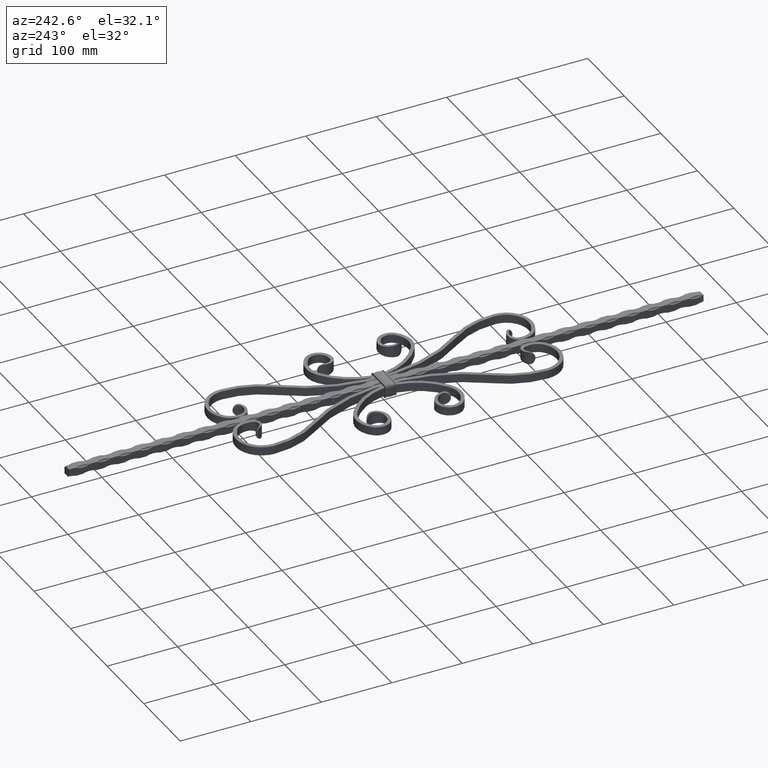
[diagram: clean part render]
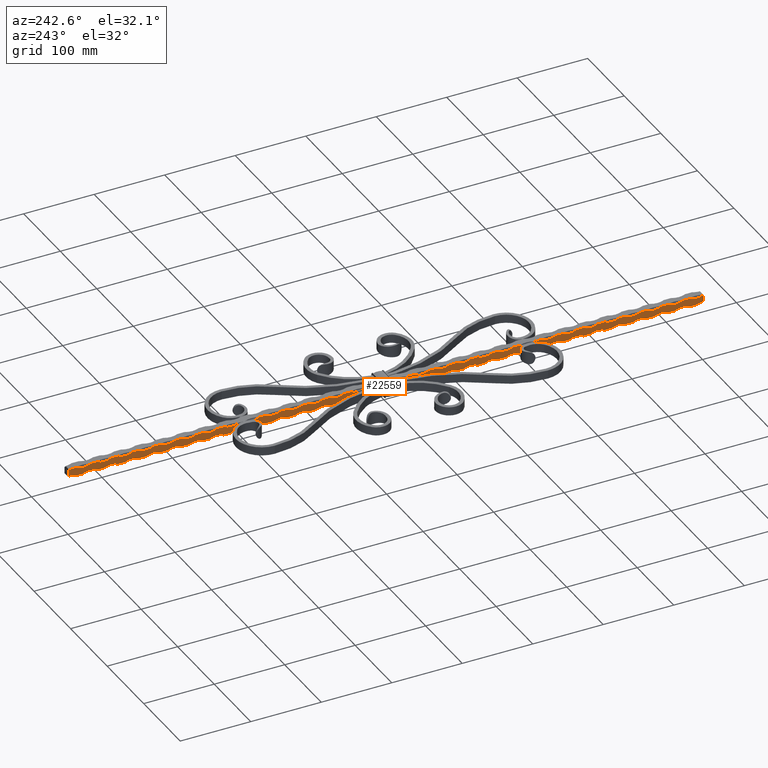
[diagram: same view with one face highlighted and labeled with its STEP entity id]
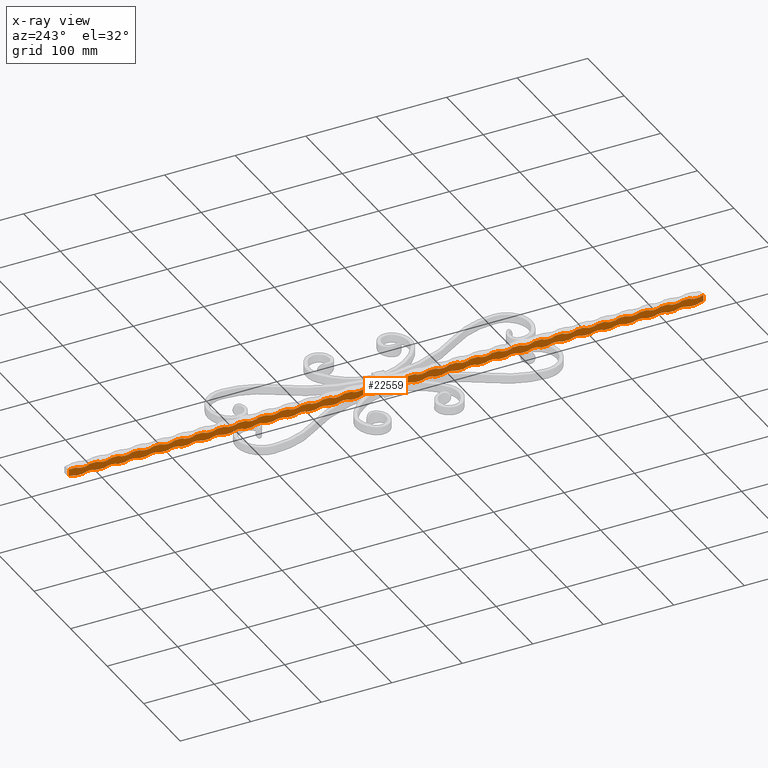
[diagram: x-ray of the same camera — body ghosted, the highlighted face saturated]
A machine part, auxiliary view. The second image highlights one B-rep face of the part: STEP entity #22559.
The next image is the same camera in x-ray: the body ghosted, the highlighted face saturated — about 0% of this face is hidden behind the body in this view.
In plain terms, the highlighted planar face has unit normal (1, 0, -0).
Its self-contained STEP definition (entity closure, byte-faithful):
#3 = LINE ( 'NONE', #18855, #5830 ) ;
#15 = CARTESIAN_POINT ( 'NONE',  ( -5.999999999999999112, 440.0000000000000000, 6.000000000000000000 ) ) ;
#39 = CARTESIAN_POINT ( 'NONE',  ( -5.999999999999998224, -269.9999999999999432, 6.000000000000000000 ) ) ;
#63 = EDGE_CURVE ( 'NONE', #18527, #9521, #18817, .T. ) ;
#79 = EDGE_CURVE ( 'NONE', #10502, #242, #475, .T. ) ;
#92 = AXIS2_PLACEMENT_3D ( 'NONE', #13435, #2261, #15291 ) ;
#106 = CIRCLE ( 'NONE', #5546, 21.25000000000003197 ) ;
#110 = VERTEX_POINT ( 'NONE', #17552 ) ;
#159 = CIRCLE ( 'NONE', #4923, 21.25000000000003197 ) ;
#186 = ORIENTED_EDGE ( 'NONE', *, *, #13899, .T. ) ;
#188 = VERTEX_POINT ( 'NONE', #17796 ) ;
#230 = ORIENTED_EDGE ( 'NONE', *, *, #21600, .F. ) ;
#242 = VERTEX_POINT ( 'NONE', #24131 ) ;
#244 = CARTESIAN_POINT ( 'NONE',  ( -6.000000000000001776, -379.9999999999999432, -5.999999999999999112 ) ) ;
#246 = VECTOR ( 'NONE', #23896, 1000.000000000000000 ) ;
#260 = ORIENTED_EDGE ( 'NONE', *, *, #5278, .F. ) ;
#280 = ORIENTED_EDGE ( 'NONE', *, *, #16012, .T. ) ;
#285 = CIRCLE ( 'NONE', #9364, 21.25000000000003197 ) ;
#287 = CIRCLE ( 'NONE', #12454, 21.25000000000003197 ) ;
#315 = AXIS2_PLACEMENT_3D ( 'NONE', #12338, #19642, #14279 ) ;
#346 = CARTESIAN_POINT ( 'NONE',  ( -6.000000000000004441, 210.0000000000000000, -24.75000000000003553 ) ) ;
#403 = LINE ( 'NONE', #23784, #14100 ) ;
#406 = LINE ( 'NONE', #17790, #18748 ) ;
#425 = DIRECTION ( 'NONE',  ( 1.000000000000000000, 0.000000000000000000, -1.445602896647339410E-16 ) ) ;
#427 = LINE ( 'NONE', #1985, #17624 ) ;
#441 = CARTESIAN_POINT ( 'NONE',  ( -5.999999999999995559, 339.9999999999999432, 24.75000000000004263 ) ) ;
#443 = EDGE_CURVE ( 'NONE', #7980, #11149, #22019, .T. ) ;
#454 = CARTESIAN_POINT ( 'NONE',  ( -5.999999999999995559, 430.0000000000000000, 24.75000000000004263 ) ) ;
#462 = DIRECTION ( 'NONE',  ( -0.000000000000000000, -1.000000000000000000, -0.000000000000000000 ) ) ;
#475 = CIRCLE ( 'NONE', #981, 21.25000000000004263 ) ;
#515 = DIRECTION ( 'NONE',  ( -1.632680918566404328E-16, 0.000000000000000000, -1.000000000000000000 ) ) ;
#523 = CARTESIAN_POINT ( 'NONE',  ( -5.999999999999998224, 120.0000000000000000, 6.000000000000000000 ) ) ;
#556 = CARTESIAN_POINT ( 'NONE',  ( -5.999999999999999112, -219.9999999999999147, 6.000000000000000000 ) ) ;
#586 = EDGE_CURVE ( 'NONE', #19421, #7584, #12737, .T. ) ;
#599 = LINE ( 'NONE', #8884, #7650 ) ;
#620 = ORIENTED_EDGE ( 'NONE', *, *, #12050, .T. ) ;
#621 = VECTOR ( 'NONE', #19592, 1000.000000000000000 ) ;
#659 = AXIS2_PLACEMENT_3D ( 'NONE', #20751, #11588, #6201 ) ;
#693 = DIRECTION ( 'NONE',  ( -0.000000000000000000, -1.000000000000000000, -0.000000000000000000 ) ) ;
#698 = DIRECTION ( 'NONE',  ( -0.000000000000000000, -1.000000000000000000, -0.000000000000000000 ) ) ;
#710 = VERTEX_POINT ( 'NONE', #18662 ) ;
#728 = DIRECTION ( 'NONE',  ( -0.000000000000000000, -1.000000000000000000, -0.000000000000000000 ) ) ;
#738 = ORIENTED_EDGE ( 'NONE', *, *, #9170, .T. ) ;
#763 = CARTESIAN_POINT ( 'NONE',  ( -5.999999999999998224, 180.0000000000000000, 6.000000000000000000 ) ) ;
#788 = DIRECTION ( 'NONE',  ( 1.000000000000000000, 0.000000000000000000, -1.445602896647339410E-16 ) ) ;
#872 = AXIS2_PLACEMENT_3D ( 'NONE', #10192, #9950, #15548 ) ;
#930 = DIRECTION ( 'NONE',  ( -0.000000000000000000, -1.000000000000000000, -0.000000000000000000 ) ) ;
#937 = EDGE_CURVE ( 'NONE', #4010, #7567, #1017, .T. ) ;
#960 = VECTOR ( 'NONE', #3198, 1000.000000000000000 ) ;
#981 = AXIS2_PLACEMENT_3D ( 'NONE', #17308, #788, #6183 ) ;
#984 = LINE ( 'NONE', #19243, #24026 ) ;
#1009 = DIRECTION ( 'NONE',  ( -1.632680918566404328E-16, 0.000000000000000000, -1.000000000000000000 ) ) ;
#1017 = CIRCLE ( 'NONE', #1639, 21.25000000000004263 ) ;
#1077 = CARTESIAN_POINT ( 'NONE',  ( -6.000000000000004441, 149.9999999999999716, -24.75000000000003553 ) ) ;
#1156 = DIRECTION ( 'NONE',  ( -0.000000000000000000, -1.000000000000000000, -0.000000000000000000 ) ) ;
#1173 = LINE ( 'NONE', #11290, #12264 ) ;
#1189 = CARTESIAN_POINT ( 'NONE',  ( -6.000000000000001776, 229.9999999999999716, -6.000000000000000000 ) ) ;
#1224 = EDGE_CURVE ( 'NONE', #14840, #18104, #159, .T. ) ;
#1234 = VECTOR ( 'NONE', #9408, 1000.000000000000000 ) ;
#1244 = CARTESIAN_POINT ( 'NONE',  ( -5.999999999999999112, 380.0000000000000000, 6.000000000000000000 ) ) ;
#1286 = VERTEX_POINT ( 'NONE', #19186 ) ;
#1298 = EDGE_CURVE ( 'NONE', #2614, #15663, #11541, .T. ) ;
#1299 = DIRECTION ( 'NONE',  ( -1.632680918566404328E-16, 0.000000000000000000, -1.000000000000000000 ) ) ;
#1331 = DIRECTION ( 'NONE',  ( 1.445602896647339163E-16, 0.000000000000000000, 1.000000000000000000 ) ) ;
#1336 = CARTESIAN_POINT ( 'NONE',  ( -5.999999999999999112, 450.0000000000000000, 6.000000000000000000 ) ) ;
#1342 = EDGE_CURVE ( 'NONE', #11915, #9521, #10090, .T. ) ;
#1344 = ORIENTED_EDGE ( 'NONE', *, *, #11855, .F. ) ;
#1352 = VERTEX_POINT ( 'NONE', #22988 ) ;
#1364 = DIRECTION ( 'NONE',  ( -0.000000000000000000, -1.000000000000000000, -0.000000000000000000 ) ) ;
#1407 = CARTESIAN_POINT ( 'NONE',  ( -6.000000000000004441, 240.0000000000000000, -24.75000000000003553 ) ) ;
#1417 = AXIS2_PLACEMENT_3D ( 'NONE', #3011, #6958, #5058 ) ;
#1444 = VERTEX_POINT ( 'NONE', #763 ) ;
#1451 = DIRECTION ( 'NONE',  ( -1.632680918566403342E-16, 0.000000000000000000, -1.000000000000000000 ) ) ;
#1503 = CARTESIAN_POINT ( 'NONE',  ( -6.000000000000001776, 10.00000000000000888, -5.999999999999999112 ) ) ;
#1508 = CIRCLE ( 'NONE', #15259, 21.25000000000004263 ) ;
#1510 = ORIENTED_EDGE ( 'NONE', *, *, #23141, .T. ) ;
#1551 = EDGE_CURVE ( 'NONE', #710, #2582, #23126, .T. ) ;
#1556 = EDGE_CURVE ( 'NONE', #8132, #188, #14998, .T. ) ;
#1616 = CARTESIAN_POINT ( 'NONE',  ( -5.999999999999999112, 450.0000000000000000, 6.000000000000000000 ) ) ;
#1621 = ORIENTED_EDGE ( 'NONE', *, *, #8502, .F. ) ;
#1636 = VERTEX_POINT ( 'NONE', #14285 ) ;
#1639 = AXIS2_PLACEMENT_3D ( 'NONE', #4263, #19145, #21004 ) ;
#1645 = DIRECTION ( 'NONE',  ( -0.000000000000000000, -1.000000000000000000, -0.000000000000000000 ) ) ;
#1670 = CARTESIAN_POINT ( 'NONE',  ( -6.000000000000000888, -450.0000000000000000, -3.500000000000001332 ) ) ;
#1686 = CIRCLE ( 'NONE', #16213, 21.25000000000003197 ) ;
#1687 = DIRECTION ( 'NONE',  ( -1.632680918566403342E-16, 0.000000000000000000, -1.000000000000000000 ) ) ;
#1764 = VECTOR ( 'NONE', #20248, 1000.000000000000000 ) ;
#1765 = CARTESIAN_POINT ( 'NONE',  ( -6.000000000000001776, -139.9999999999999716, -5.999999999999999112 ) ) ;
#1767 = CIRCLE ( 'NONE', #5286, 21.25000000000003197 ) ;
#1770 = CARTESIAN_POINT ( 'NONE',  ( -6.000000000000001776, -70.00000000000000000, -6.000000000000000000 ) ) ;
#1779 = DIRECTION ( 'NONE',  ( -0.000000000000000000, -1.000000000000000000, -0.000000000000000000 ) ) ;
#1862 = LINE ( 'NONE', #9679, #14387 ) ;
#1889 = CIRCLE ( 'NONE', #11459, 21.25000000000004263 ) ;
#1919 = VERTEX_POINT ( 'NONE', #2461 ) ;
#1922 = AXIS2_PLACEMENT_3D ( 'NONE', #15514, #8128, #9989 ) ;
#1950 = CARTESIAN_POINT ( 'NONE',  ( -5.999999999999998224, 29.99999999999996803, 6.000000000000000000 ) ) ;
#1975 = LINE ( 'NONE', #11507, #17691 ) ;
#1985 = CARTESIAN_POINT ( 'NONE',  ( -5.999999999999999112, 450.0000000000000000, 6.000000000000000000 ) ) ;
#2026 = ORIENTED_EDGE ( 'NONE', *, *, #4351, .F. ) ;
#2062 = DIRECTION ( 'NONE',  ( 1.000000000000000000, 0.000000000000000000, -1.445602896647339410E-16 ) ) ;
#2082 = LINE ( 'NONE', #14901, #14889 ) ;
#2083 = ORIENTED_EDGE ( 'NONE', *, *, #16117, .F. ) ;
#2111 = DIRECTION ( 'NONE',  ( 1.000000000000000000, 0.000000000000000000, -1.445602896647339410E-16 ) ) ;
#2116 = EDGE_CURVE ( 'NONE', #12152, #12775, #5073, .T. ) ;
#2124 = CARTESIAN_POINT ( 'NONE',  ( -6.000000000000001776, -100.0000000000000284, -6.000000000000000000 ) ) ;
#2139 = CARTESIAN_POINT ( 'NONE',  ( -5.999999999999999112, -450.0000000000000000, 6.000000000000000000 ) ) ;
#2153 = CIRCLE ( 'NONE', #3673, 21.25000000000003197 ) ;
#2215 = ORIENTED_EDGE ( 'NONE', *, *, #13492, .F. ) ;
#2221 = DIRECTION ( 'NONE',  ( -1.632680918566404328E-16, 0.000000000000000000, -1.000000000000000000 ) ) ;
#2233 = DIRECTION ( 'NONE',  ( -0.000000000000000000, -1.000000000000000000, -0.000000000000000000 ) ) ;
#2243 = VERTEX_POINT ( 'NONE', #6014 ) ;
#2261 = DIRECTION ( 'NONE',  ( 1.000000000000000000, 0.000000000000000000, -1.445602896647339410E-16 ) ) ;
#2296 = VECTOR ( 'NONE', #11974, 1000.000000000000000 ) ;
#2434 = VERTEX_POINT ( 'NONE', #5516 ) ;
#2461 = CARTESIAN_POINT ( 'NONE',  ( -6.000000000000001776, -110.0000000000000426, -5.999999999999999112 ) ) ;
#2477 = DIRECTION ( 'NONE',  ( -0.000000000000000000, -1.000000000000000000, -0.000000000000000000 ) ) ;
#2484 = DIRECTION ( 'NONE',  ( -0.000000000000000000, -1.000000000000000000, -0.000000000000000000 ) ) ;
#2486 = EDGE_CURVE ( 'NONE', #4830, #13567, #4189, .T. ) ;
#2494 = DIRECTION ( 'NONE',  ( -0.000000000000000000, -1.000000000000000000, -0.000000000000000000 ) ) ;
#2496 = EDGE_CURVE ( 'NONE', #22294, #16413, #10015, .T. ) ;
#2514 = CARTESIAN_POINT ( 'NONE',  ( -6.000000000000000888, 450.0000000000000000, -6.000000000000000000 ) ) ;
#2552 = VERTEX_POINT ( 'NONE', #18350 ) ;
#2566 = DIRECTION ( 'NONE',  ( 1.000000000000000000, 0.000000000000000000, -1.445602896647339410E-16 ) ) ;
#2582 = VERTEX_POINT ( 'NONE', #16869 ) ;
#2591 = CARTESIAN_POINT ( 'NONE',  ( -5.999999999999998224, -120.0000000000000568, 6.000000000000000000 ) ) ;
#2607 = DIRECTION ( 'NONE',  ( 1.000000000000000000, 0.000000000000000000, -1.445602896647339410E-16 ) ) ;
#2614 = VERTEX_POINT ( 'NONE', #7641 ) ;
#2631 = EDGE_CURVE ( 'NONE', #15916, #22683, #6530, .T. ) ;
#2680 = LINE ( 'NONE', #13151, #1234 ) ;
#2685 = DIRECTION ( 'NONE',  ( 1.000000000000000000, 0.000000000000000000, -1.445602896647339410E-16 ) ) ;
#2732 = CARTESIAN_POINT ( 'NONE',  ( -5.999999999999999112, 450.0000000000000000, 6.000000000000000000 ) ) ;
#2735 = VERTEX_POINT ( 'NONE', #12247 ) ;
#2742 = VERTEX_POINT ( 'NONE', #12325 ) ;
#2755 = CARTESIAN_POINT ( 'NONE',  ( -5.999999999999999112, 80.00000000000001421, 6.000000000000000000 ) ) ;
#2779 = ORIENTED_EDGE ( 'NONE', *, *, #23839, .T. ) ;
#2800 = CARTESIAN_POINT ( 'NONE',  ( -5.999999999999998224, 420.0000000000000000, 6.000000000000000000 ) ) ;
#2872 = AXIS2_PLACEMENT_3D ( 'NONE', #9222, #7358, #20339 ) ;
#3011 = CARTESIAN_POINT ( 'NONE',  ( -6.000000000000009770, 449.9999999999999432, -24.75000000000003553 ) ) ;
#3031 = CIRCLE ( 'NONE', #21116, 21.25000000000003197 ) ;
#3039 = CARTESIAN_POINT ( 'NONE',  ( -6.000000000000000888, 450.0000000000000000, -6.000000000000000000 ) ) ;
#3051 = AXIS2_PLACEMENT_3D ( 'NONE', #16372, #5237, #18248 ) ;
#3060 = ORIENTED_EDGE ( 'NONE', *, *, #79, .T. ) ;
#3088 = EDGE_CURVE ( 'NONE', #2552, #12214, #17250, .T. ) ;
#3096 = DIRECTION ( 'NONE',  ( -0.000000000000000000, -1.000000000000000000, -0.000000000000000000 ) ) ;
#3153 = ORIENTED_EDGE ( 'NONE', *, *, #17878, .T. ) ;
#3198 = DIRECTION ( 'NONE',  ( -0.000000000000000000, -1.000000000000000000, -0.000000000000000000 ) ) ;
#3209 = PLANE ( 'NONE',  #12644 ) ;
#3211 = CARTESIAN_POINT ( 'NONE',  ( -5.999999999999999112, 450.0000000000000000, 6.000000000000000000 ) ) ;
#3308 = DIRECTION ( 'NONE',  ( -1.632680918566403342E-16, 0.000000000000000000, -1.000000000000000000 ) ) ;
#3321 = DIRECTION ( 'NONE',  ( -0.000000000000000000, -1.000000000000000000, -0.000000000000000000 ) ) ;
#3340 = LINE ( 'NONE', #16450, #13827 ) ;
#3364 = VECTOR ( 'NONE', #2494, 1000.000000000000000 ) ;
#3373 = CARTESIAN_POINT ( 'NONE',  ( -5.999999999999995559, 250.0000000000000000, 24.75000000000004263 ) ) ;
#3389 = ORIENTED_EDGE ( 'NONE', *, *, #9541, .F. ) ;
#3415 = ORIENTED_EDGE ( 'NONE', *, *, #11200, .F. ) ;
#3459 = CARTESIAN_POINT ( 'NONE',  ( -6.000000000000001776, 370.0000000000000000, -5.999999999999999112 ) ) ;
#3467 = VERTEX_POINT ( 'NONE', #16142 ) ;
#3479 = VERTEX_POINT ( 'NONE', #18105 ) ;
#3482 = ORIENTED_EDGE ( 'NONE', *, *, #6164, .T. ) ;
#3516 = ORIENTED_EDGE ( 'NONE', *, *, #11736, .T. ) ;
#3555 = CARTESIAN_POINT ( 'NONE',  ( -6.000000000000000888, 450.0000000000000000, -6.000000000000000000 ) ) ;
#3573 = CARTESIAN_POINT ( 'NONE',  ( -6.000000000000000888, 450.0000000000000000, -6.000000000000000000 ) ) ;
#3583 = CIRCLE ( 'NONE', #4002, 21.25000000000003197 ) ;
#3615 = ORIENTED_EDGE ( 'NONE', *, *, #15069, .T. ) ;
#3654 = DIRECTION ( 'NONE',  ( -0.000000000000000000, -1.000000000000000000, -0.000000000000000000 ) ) ;
#3673 = AXIS2_PLACEMENT_3D ( 'NONE', #7042, #23759, #12392 ) ;
#3706 = CARTESIAN_POINT ( 'NONE',  ( -6.000000000000000888, -450.0000000000000000, -6.000000000000000000 ) ) ;
#3718 = AXIS2_PLACEMENT_3D ( 'NONE', #7520, #24093, #12967 ) ;
#3736 = VERTEX_POINT ( 'NONE', #15325 ) ;
#3798 = CARTESIAN_POINT ( 'NONE',  ( -6.000000000000001776, 159.9999999999999716, -5.999999999999999112 ) ) ;
#3802 = VECTOR ( 'NONE', #22862, 1000.000000000000000 ) ;
#3814 = CARTESIAN_POINT ( 'NONE',  ( -5.999999999999995559, -350.0000000000000568, 24.75000000000004263 ) ) ;
#3859 = DIRECTION ( 'NONE',  ( -1.632680918566404328E-16, 0.000000000000000000, -1.000000000000000000 ) ) ;
#3890 = AXIS2_PLACEMENT_3D ( 'NONE', #1407, #16448, #16292 ) ;
#3892 = CARTESIAN_POINT ( 'NONE',  ( -6.000000000000001776, -10.00000000000000711, -6.000000000000000000 ) ) ;
#3915 = CIRCLE ( 'NONE', #2872, 21.25000000000003197 ) ;
#3926 = CARTESIAN_POINT ( 'NONE',  ( -6.000000000000004441, 329.9999999999999432, -24.75000000000003553 ) ) ;
#3927 = CARTESIAN_POINT ( 'NONE',  ( -5.999999999999999112, -340.0000000000000000, 6.000000000000000000 ) ) ;
#3941 = CIRCLE ( 'NONE', #14263, 21.25000000000003197 ) ;
#3960 = EDGE_CURVE ( 'NONE', #15704, #19940, #12600, .T. ) ;
#3969 = DIRECTION ( 'NONE',  ( 1.000000000000000000, 0.000000000000000000, -1.445602896647339410E-16 ) ) ;
#4001 = LINE ( 'NONE', #14416, #6020 ) ;
#4002 = AXIS2_PLACEMENT_3D ( 'NONE', #13072, #22240, #22321 ) ;
#4010 = VERTEX_POINT ( 'NONE', #1950 ) ;
#4034 = DIRECTION ( 'NONE',  ( 1.000000000000000000, 0.000000000000000000, -1.445602896647339410E-16 ) ) ;
#4040 = DIRECTION ( 'NONE',  ( -0.000000000000000000, -1.000000000000000000, -0.000000000000000000 ) ) ;
#4079 = CARTESIAN_POINT ( 'NONE',  ( -5.999999999999995559, 280.0000000000000000, 24.75000000000004263 ) ) ;
#4103 = EDGE_CURVE ( 'NONE', #14592, #22404, #6467, .T. ) ;
#4123 = CARTESIAN_POINT ( 'NONE',  ( -6.000000000000000888, 450.0000000000000000, -6.000000000000000000 ) ) ;
#4125 = VECTOR ( 'NONE', #1156, 1000.000000000000000 ) ;
#4189 = CIRCLE ( 'NONE', #13520, 21.25000000000003197 ) ;
#4201 = EDGE_CURVE ( 'NONE', #1444, #15129, #1508, .T. ) ;
#4223 = VERTEX_POINT ( 'NONE', #11493 ) ;
#4263 = CARTESIAN_POINT ( 'NONE',  ( -5.999999999999995559, 39.99999999999997868, 24.75000000000004263 ) ) ;
#4307 = CARTESIAN_POINT ( 'NONE',  ( -5.999999999999999112, 140.0000000000000000, 6.000000000000000000 ) ) ;
#4351 = EDGE_CURVE ( 'NONE', #10179, #3479, #18106, .T. ) ;
#4357 = ORIENTED_EDGE ( 'NONE', *, *, #17915, .T. ) ;
#4385 = CARTESIAN_POINT ( 'NONE',  ( -6.000000000000001776, 250.0000000000000000, -5.999999999999999112 ) ) ;
#4397 = CARTESIAN_POINT ( 'NONE',  ( -6.000000000000000888, 450.0000000000000000, -6.000000000000000000 ) ) ;
#4447 = EDGE_CURVE ( 'NONE', #15027, #20289, #19826, .T. ) ;
#4466 = LINE ( 'NONE', #24063, #19028 ) ;
#4493 = CARTESIAN_POINT ( 'NONE',  ( -5.999999999999995559, 130.0000000000000000, 24.75000000000004263 ) ) ;
#4495 = VERTEX_POINT ( 'NONE', #6844 ) ;
#4502 = VERTEX_POINT ( 'NONE', #6682 ) ;
#4512 = EDGE_CURVE ( 'NONE', #20289, #23777, #9105, .T. ) ;
#4556 = ORIENTED_EDGE ( 'NONE', *, *, #12441, .T. ) ;
#4579 = ORIENTED_EDGE ( 'NONE', *, *, #4792, .T. ) ;
#4589 = ORIENTED_EDGE ( 'NONE', *, *, #11144, .F. ) ;
#4608 = LINE ( 'NONE', #2514, #6661 ) ;
#4617 = EDGE_CURVE ( 'NONE', #22683, #18842, #8795, .T. ) ;
#4623 = CARTESIAN_POINT ( 'NONE',  ( -6.000000000000004441, -120.0000000000000568, -24.75000000000003553 ) ) ;
#4636 = CARTESIAN_POINT ( 'NONE',  ( -5.999999999999998224, 210.0000000000000000, 6.000000000000000000 ) ) ;
#4644 = VERTEX_POINT ( 'NONE', #19970 ) ;
#4673 = CARTESIAN_POINT ( 'NONE',  ( -6.000000000000001776, 280.0000000000000000, -5.999999999999999112 ) ) ;
#4699 = LINE ( 'NONE', #19721, #4125 ) ;
#4709 = CIRCLE ( 'NONE', #6422, 21.25000000000004263 ) ;
#4710 = ORIENTED_EDGE ( 'NONE', *, *, #21937, .T. ) ;
#4718 = EDGE_CURVE ( 'NONE', #13567, #13076, #4699, .T. ) ;
#4743 = CARTESIAN_POINT ( 'NONE',  ( -5.999999999999999112, -9.999999999999953815, 6.000000000000000000 ) ) ;
#4745 = VERTEX_POINT ( 'NONE', #14360 ) ;
#4770 = AXIS2_PLACEMENT_3D ( 'NONE', #12821, #9006, #8757 ) ;
#4792 = EDGE_CURVE ( 'NONE', #7195, #22062, #17209, .T. ) ;
#4830 = VERTEX_POINT ( 'NONE', #5723 ) ;
#4848 = DIRECTION ( 'NONE',  ( -1.632680918566404328E-16, 0.000000000000000000, -1.000000000000000000 ) ) ;
#4867 = CIRCLE ( 'NONE', #315, 21.25000000000003197 ) ;
#4907 = ORIENTED_EDGE ( 'NONE', *, *, #3960, .T. ) ;
#4920 = DIRECTION ( 'NONE',  ( -1.632680918566403342E-16, 0.000000000000000000, -1.000000000000000000 ) ) ;
#4923 = AXIS2_PLACEMENT_3D ( 'NONE', #21066, #19295, #8179 ) ;
#4970 = VERTEX_POINT ( 'NONE', #556 ) ;
#4977 = VERTEX_POINT ( 'NONE', #3927 ) ;
#5037 = CARTESIAN_POINT ( 'NONE',  ( -6.000000000000000888, 450.0000000000000000, -6.000000000000000000 ) ) ;
#5058 = DIRECTION ( 'NONE',  ( -1.632680918566404328E-16, 0.000000000000000000, -1.000000000000000000 ) ) ;
#5072 = ORIENTED_EDGE ( 'NONE', *, *, #17948, .F. ) ;
#5073 = CIRCLE ( 'NONE', #9322, 21.25000000000004263 ) ;
#5128 = ORIENTED_EDGE ( 'NONE', *, *, #6457, .T. ) ;
#5174 = AXIS2_PLACEMENT_3D ( 'NONE', #17291, #21025, #1009 ) ;
#5176 = DIRECTION ( 'NONE',  ( 1.000000000000000000, 0.000000000000000000, -1.445602896647339410E-16 ) ) ;
#5178 = DIRECTION ( 'NONE',  ( 1.000000000000000000, 0.000000000000000000, -1.445602896647339410E-16 ) ) ;
#5183 = EDGE_CURVE ( 'NONE', #18104, #14892, #11105, .T. ) ;
#5201 = ORIENTED_EDGE ( 'NONE', *, *, #23444, .T. ) ;
#5235 = EDGE_CURVE ( 'NONE', #8816, #4830, #22718, .T. ) ;
#5237 = DIRECTION ( 'NONE',  ( 1.000000000000000000, 0.000000000000000000, -1.445602896647339410E-16 ) ) ;
#5251 = CIRCLE ( 'NONE', #10926, 21.25000000000003197 ) ;
#5278 = EDGE_CURVE ( 'NONE', #7613, #23321, #7629, .T. ) ;
#5286 = AXIS2_PLACEMENT_3D ( 'NONE', #3926, #20821, #17170 ) ;
#5310 = EDGE_CURVE ( 'NONE', #7912, #110, #22440, .T. ) ;
#5452 = EDGE_CURVE ( 'NONE', #7313, #1286, #3, .T. ) ;
#5456 = EDGE_CURVE ( 'NONE', #16870, #20963, #285, .T. ) ;
#5516 = CARTESIAN_POINT ( 'NONE',  ( -6.000000000000001776, -430.0000000000000000, -6.000000000000000000 ) ) ;
#5525 = CIRCLE ( 'NONE', #659, 21.25000000000004263 ) ;
#5532 = EDGE_CURVE ( 'NONE', #16248, #6428, #5251, .T. ) ;
#5545 = ORIENTED_EDGE ( 'NONE', *, *, #1556, .T. ) ;
#5546 = AXIS2_PLACEMENT_3D ( 'NONE', #8133, #17219, #5911 ) ;
#5568 = EDGE_CURVE ( 'NONE', #8478, #10332, #11380, .T. ) ;
#5571 = EDGE_CURVE ( 'NONE', #11915, #19311, #9922, .T. ) ;
#5597 = DIRECTION ( 'NONE',  ( -1.632680918566404328E-16, 0.000000000000000000, -1.000000000000000000 ) ) ;
#5627 = VECTOR ( 'NONE', #21559, 1000.000000000000000 ) ;
#5634 = AXIS2_PLACEMENT_3D ( 'NONE', #18365, #22114, #1451 ) ;
#5655 = CARTESIAN_POINT ( 'NONE',  ( -6.000000000000001776, -190.0000000000000000, -6.000000000000000000 ) ) ;
#5664 = DIRECTION ( 'NONE',  ( -1.632680918566403342E-16, 0.000000000000000000, -1.000000000000000000 ) ) ;
#5676 = ORIENTED_EDGE ( 'NONE', *, *, #11385, .T. ) ;
#5690 = ORIENTED_EDGE ( 'NONE', *, *, #16634, .T. ) ;
#5694 = VERTEX_POINT ( 'NONE', #23147 ) ;
#5708 = CARTESIAN_POINT ( 'NONE',  ( -6.000000000000001776, -130.0000000000000568, -6.000000000000000000 ) ) ;
#5723 = CARTESIAN_POINT ( 'NONE',  ( -6.000000000000001776, 190.0000000000000000, -5.999999999999999112 ) ) ;
#5726 = CARTESIAN_POINT ( 'NONE',  ( -6.000000000000001776, 19.99999999999996092, -6.000000000000000000 ) ) ;
#5774 = ORIENTED_EDGE ( 'NONE', *, *, #443, .T. ) ;
#5780 = DIRECTION ( 'NONE',  ( 1.000000000000000000, 0.000000000000000000, -1.445602896647339410E-16 ) ) ;
#5795 = CARTESIAN_POINT ( 'NONE',  ( -5.999999999999999112, -310.0000000000000000, 6.000000000000000000 ) ) ;
#5830 = VECTOR ( 'NONE', #3654, 1000.000000000000000 ) ;
#5899 = CARTESIAN_POINT ( 'NONE',  ( -6.000000000000001776, -310.0000000000000000, -6.000000000000000000 ) ) ;
#5906 = EDGE_CURVE ( 'NONE', #15413, #22294, #1173, .T. ) ;
#5911 = DIRECTION ( 'NONE',  ( -1.632680918566404328E-16, 0.000000000000000000, -1.000000000000000000 ) ) ;
#5976 = CARTESIAN_POINT ( 'NONE',  ( -6.000000000000004441, 90.00000000000002842, -24.75000000000003553 ) ) ;
#6014 = CARTESIAN_POINT ( 'NONE',  ( -6.000000000000001776, -399.9999999999999432, -6.000000000000000000 ) ) ;
#6020 = VECTOR ( 'NONE', #19783, 1000.000000000000000 ) ;
#6133 = LINE ( 'NONE', #10025, #20964 ) ;
#6140 = AXIS2_PLACEMENT_3D ( 'NONE', #16083, #12449, #8964 ) ;
#6164 = EDGE_CURVE ( 'NONE', #16413, #14840, #15463, .T. ) ;
#6171 = CARTESIAN_POINT ( 'NONE',  ( -5.999999999999999112, 450.0000000000000000, 6.000000000000000000 ) ) ;
#6183 = DIRECTION ( 'NONE',  ( -1.632680918566403342E-16, 0.000000000000000000, -1.000000000000000000 ) ) ;
#6201 = DIRECTION ( 'NONE',  ( -1.632680918566403342E-16, 0.000000000000000000, -1.000000000000000000 ) ) ;
#6202 = DIRECTION ( 'NONE',  ( -1.632680918566403342E-16, 0.000000000000000000, -1.000000000000000000 ) ) ;
#6205 = CARTESIAN_POINT ( 'NONE',  ( -5.999999999999998224, -330.0000000000000000, 6.000000000000000000 ) ) ;
#6221 = CARTESIAN_POINT ( 'NONE',  ( -6.000000000000000888, 450.0000000000000000, -6.000000000000000000 ) ) ;
#6247 = DIRECTION ( 'NONE',  ( -1.632680918566404328E-16, 0.000000000000000000, -1.000000000000000000 ) ) ;
#6261 = ORIENTED_EDGE ( 'NONE', *, *, #5452, .T. ) ;
#6325 = DIRECTION ( 'NONE',  ( -1.632680918566403342E-16, 0.000000000000000000, -1.000000000000000000 ) ) ;
#6332 = CARTESIAN_POINT ( 'NONE',  ( -5.999999999999998224, 329.9999999999999432, 6.000000000000000000 ) ) ;
#6335 = ORIENTED_EDGE ( 'NONE', *, *, #14393, .T. ) ;
#6422 = AXIS2_PLACEMENT_3D ( 'NONE', #8744, #21723, #16195 ) ;
#6428 = VERTEX_POINT ( 'NONE', #2124 ) ;
#6457 = EDGE_CURVE ( 'NONE', #18527, #12424, #18631, .T. ) ;
#6467 = CIRCLE ( 'NONE', #3718, 21.25000000000004263 ) ;
#6530 = LINE ( 'NONE', #6221, #10598 ) ;
#6556 = CIRCLE ( 'NONE', #22406, 21.25000000000004263 ) ;
#6641 = DIRECTION ( 'NONE',  ( 1.000000000000000000, 0.000000000000000000, -1.445602896647339410E-16 ) ) ;
#6661 = VECTOR ( 'NONE', #17310, 1000.000000000000000 ) ;
#6674 = ORIENTED_EDGE ( 'NONE', *, *, #17584, .T. ) ;
#6681 = DIRECTION ( 'NONE',  ( -0.000000000000000000, -1.000000000000000000, -0.000000000000000000 ) ) ;
#6682 = CARTESIAN_POINT ( 'NONE',  ( -5.999999999999998224, -300.0000000000000000, 6.000000000000000000 ) ) ;
#6689 = CARTESIAN_POINT ( 'NONE',  ( -5.999999999999998224, 390.0000000000000000, 6.000000000000000000 ) ) ;
#6738 = DIRECTION ( 'NONE',  ( -0.000000000000000000, -1.000000000000000000, -0.000000000000000000 ) ) ;
#6803 = CARTESIAN_POINT ( 'NONE',  ( -5.999999999999998224, -180.0000000000000000, 6.000000000000000000 ) ) ;
#6812 = EDGE_CURVE ( 'NONE', #8804, #5694, #13405, .T. ) ;
#6817 = CIRCLE ( 'NONE', #9669, 21.25000000000004263 ) ;
#6836 = CIRCLE ( 'NONE', #13093, 21.25000000000004263 ) ;
#6844 = CARTESIAN_POINT ( 'NONE',  ( -6.000000000000001776, 380.0000000000000000, -6.000000000000000000 ) ) ;
#6898 = CARTESIAN_POINT ( 'NONE',  ( -5.999999999999998224, -90.00000000000002842, 6.000000000000000000 ) ) ;
#6905 = ORIENTED_EDGE ( 'NONE', *, *, #24048, .T. ) ;
#6958 = DIRECTION ( 'NONE',  ( 1.000000000000000000, 0.000000000000000000, -1.445602896647339410E-16 ) ) ;
#6971 = VERTEX_POINT ( 'NONE', #12557 ) ;
#7015 = VERTEX_POINT ( 'NONE', #21877 ) ;
#7042 = CARTESIAN_POINT ( 'NONE',  ( -6.000000000000004441, -389.9999999999999432, -24.75000000000003553 ) ) ;
#7169 = ORIENTED_EDGE ( 'NONE', *, *, #20122, .T. ) ;
#7195 = VERTEX_POINT ( 'NONE', #4385 ) ;
#7214 = ORIENTED_EDGE ( 'NONE', *, *, #14924, .T. ) ;
#7238 = CARTESIAN_POINT ( 'NONE',  ( -6.000000000000001776, -39.99999999999997868, -6.000000000000000000 ) ) ;
#7313 = VERTEX_POINT ( 'NONE', #10318 ) ;
#7358 = DIRECTION ( 'NONE',  ( 1.000000000000000000, 0.000000000000000000, -1.445602896647339410E-16 ) ) ;
#7361 = CARTESIAN_POINT ( 'NONE',  ( -5.999999999999999112, -430.0000000000000000, 6.000000000000000000 ) ) ;
#7403 = VERTEX_POINT ( 'NONE', #8626 ) ;
#7413 = DIRECTION ( 'NONE',  ( -1.632680918566404328E-16, 0.000000000000000000, -1.000000000000000000 ) ) ;
#7415 = VECTOR ( 'NONE', #2233, 1000.000000000000000 ) ;
#7465 = CARTESIAN_POINT ( 'NONE',  ( -5.999999999999999112, 450.0000000000000000, 6.000000000000000000 ) ) ;
#7485 = ORIENTED_EDGE ( 'NONE', *, *, #22791, .T. ) ;
#7520 = CARTESIAN_POINT ( 'NONE',  ( -5.999999999999995559, 10.00000000000000888, 24.75000000000004263 ) ) ;
#7523 = VERTEX_POINT ( 'NONE', #39 ) ;
#7542 = EDGE_CURVE ( 'NONE', #14592, #24056, #8709, .T. ) ;
#7560 = LINE ( 'NONE', #19428, #2296 ) ;
#7567 = VERTEX_POINT ( 'NONE', #12774 ) ;
#7584 = VERTEX_POINT ( 'NONE', #16479 ) ;
#7606 = ORIENTED_EDGE ( 'NONE', *, *, #16344, .T. ) ;
#7613 = VERTEX_POINT ( 'NONE', #11293 ) ;
#7629 = LINE ( 'NONE', #16342, #20112 ) ;
#7641 = CARTESIAN_POINT ( 'NONE',  ( -6.000000000000001776, 80.00000000000001421, -6.000000000000000000 ) ) ;
#7650 = VECTOR ( 'NONE', #3321, 1000.000000000000000 ) ;
#7670 = ORIENTED_EDGE ( 'NONE', *, *, #5456, .T. ) ;
#7677 = DIRECTION ( 'NONE',  ( -0.000000000000000000, -1.000000000000000000, -0.000000000000000000 ) ) ;
#7750 = CIRCLE ( 'NONE', #8650, 21.25000000000004263 ) ;
#7762 = ORIENTED_EDGE ( 'NONE', *, *, #2486, .T. ) ;
#7800 = VECTOR ( 'NONE', #698, 1000.000000000000000 ) ;
#7873 = DIRECTION ( 'NONE',  ( -1.632680918566404328E-16, 0.000000000000000000, -1.000000000000000000 ) ) ;
#7882 = DIRECTION ( 'NONE',  ( -0.000000000000000000, -1.000000000000000000, -0.000000000000000000 ) ) ;
#7912 = VERTEX_POINT ( 'NONE', #10548 ) ;
#7919 = CARTESIAN_POINT ( 'NONE',  ( -5.999999999999995559, 190.0000000000000000, 24.75000000000004263 ) ) ;
#7980 = VERTEX_POINT ( 'NONE', #15163 ) ;
#8032 = EDGE_CURVE ( 'NONE', #9435, #1352, #1975, .T. ) ;
#8067 = EDGE_CURVE ( 'NONE', #188, #15916, #10424, .T. ) ;
#8110 = VERTEX_POINT ( 'NONE', #6205 ) ;
#8111 = ORIENTED_EDGE ( 'NONE', *, *, #16837, .F. ) ;
#8128 = DIRECTION ( 'NONE',  ( 1.000000000000000000, 0.000000000000000000, -1.445602896647339410E-16 ) ) ;
#8132 = VERTEX_POINT ( 'NONE', #12064 ) ;
#8133 = CARTESIAN_POINT ( 'NONE',  ( -6.000000000000004441, 420.0000000000000000, -24.75000000000003553 ) ) ;
#8144 = VERTEX_POINT ( 'NONE', #11920 ) ;
#8170 = ORIENTED_EDGE ( 'NONE', *, *, #8427, .T. ) ;
#8174 = DIRECTION ( 'NONE',  ( 1.000000000000000000, 0.000000000000000000, -1.445602896647339410E-16 ) ) ;
#8179 = DIRECTION ( 'NONE',  ( -1.632680918566404328E-16, 0.000000000000000000, -1.000000000000000000 ) ) ;
#8250 = CIRCLE ( 'NONE', #20729, 21.25000000000004263 ) ;
#8291 = EDGE_CURVE ( 'NONE', #8144, #7912, #16223, .T. ) ;
#8295 = CIRCLE ( 'NONE', #9738, 21.25000000000003197 ) ;
#8367 = ORIENTED_EDGE ( 'NONE', *, *, #2116, .T. ) ;
#8375 = CARTESIAN_POINT ( 'NONE',  ( -6.000000000000004441, 0.000000000000000000, -24.75000000000003553 ) ) ;
#8427 = EDGE_CURVE ( 'NONE', #6971, #17132, #9552, .T. ) ;
#8464 = CARTESIAN_POINT ( 'NONE',  ( -5.999999999999999112, 350.0000000000000000, 6.000000000000000000 ) ) ;
#8478 = VERTEX_POINT ( 'NONE', #21274 ) ;
#8502 = EDGE_CURVE ( 'NONE', #4745, #11149, #16796, .T. ) ;
#8619 = DIRECTION ( 'NONE',  ( -0.000000000000000000, -1.000000000000000000, -0.000000000000000000 ) ) ;
#8626 = CARTESIAN_POINT ( 'NONE',  ( -5.999999999999999112, -39.99999999999997868, 6.000000000000000000 ) ) ;
#8645 = ORIENTED_EDGE ( 'NONE', *, *, #4103, .T. ) ;
#8650 = AXIS2_PLACEMENT_3D ( 'NONE', #4079, #17235, #13752 ) ;
#8692 = CARTESIAN_POINT ( 'NONE',  ( -6.000000000000000888, 450.0000000000000000, -6.000000000000000000 ) ) ;
#8700 = CARTESIAN_POINT ( 'NONE',  ( -6.000000000000001776, -200.0000000000000000, -5.999999999999999112 ) ) ;
#8709 = LINE ( 'NONE', #14939, #246 ) ;
#8739 = CARTESIAN_POINT ( 'NONE',  ( -5.999999999999995559, -410.0000000000000000, 24.75000000000004263 ) ) ;
#8744 = CARTESIAN_POINT ( 'NONE',  ( -5.999999999999995559, -19.99999999999996092, 24.75000000000004263 ) ) ;
#8757 = DIRECTION ( 'NONE',  ( -1.632680918566404328E-16, 0.000000000000000000, -1.000000000000000000 ) ) ;
#8776 = LINE ( 'NONE', #10114, #3802 ) ;
#8795 = CIRCLE ( 'NONE', #13698, 21.25000000000003197 ) ;
#8800 = VECTOR ( 'NONE', #930, 1000.000000000000000 ) ;
#8804 = VERTEX_POINT ( 'NONE', #15967 ) ;
#8816 = VERTEX_POINT ( 'NONE', #15884 ) ;
#8850 = CARTESIAN_POINT ( 'NONE',  ( -6.000000000000000888, 450.0000000000000000, -6.000000000000000000 ) ) ;
#8880 = LINE ( 'NONE', #22360, #23699 ) ;
#8884 = CARTESIAN_POINT ( 'NONE',  ( -6.000000000000000888, 450.0000000000000000, -6.000000000000000000 ) ) ;
#8891 = EDGE_CURVE ( 'NONE', #8478, #18325, #13597, .T. ) ;
#8904 = CIRCLE ( 'NONE', #872, 21.25000000000004263 ) ;
#8946 = VERTEX_POINT ( 'NONE', #5795 ) ;
#8964 = DIRECTION ( 'NONE',  ( -1.632680918566403342E-16, 0.000000000000000000, -1.000000000000000000 ) ) ;
#8978 = CARTESIAN_POINT ( 'NONE',  ( -6.000000000000000888, 450.0000000000000000, -6.000000000000000000 ) ) ;
#8998 = VERTEX_POINT ( 'NONE', #18799 ) ;
#9006 = DIRECTION ( 'NONE',  ( 1.000000000000000000, 0.000000000000000000, -1.445602896647339410E-16 ) ) ;
#9040 = CARTESIAN_POINT ( 'NONE',  ( -5.999999999999995559, 70.00000000000000000, 24.75000000000004263 ) ) ;
#9062 = CARTESIAN_POINT ( 'NONE',  ( -5.999999999999999112, 450.0000000000000000, 6.000000000000000000 ) ) ;
#9105 = CIRCLE ( 'NONE', #11216, 21.25000000000003197 ) ;
#9109 = DIRECTION ( 'NONE',  ( 1.000000000000000000, 0.000000000000000000, -1.445602896647339410E-16 ) ) ;
#9130 = VECTOR ( 'NONE', #18247, 1000.000000000000000 ) ;
#9170 = EDGE_CURVE ( 'NONE', #4223, #20288, #11274, .T. ) ;
#9189 = VECTOR ( 'NONE', #12596, 1000.000000000000000 ) ;
#9209 = EDGE_CURVE ( 'NONE', #8110, #4977, #20856, .T. ) ;
#9213 = ORIENTED_EDGE ( 'NONE', *, *, #14956, .F. ) ;
#9219 = ORIENTED_EDGE ( 'NONE', *, *, #21609, .T. ) ;
#9222 = CARTESIAN_POINT ( 'NONE',  ( -6.000000000000004441, 120.0000000000000000, -24.75000000000003553 ) ) ;
#9232 = VERTEX_POINT ( 'NONE', #12945 ) ;
#9268 = DIRECTION ( 'NONE',  ( -0.000000000000000000, -1.000000000000000000, -0.000000000000000000 ) ) ;
#9322 = AXIS2_PLACEMENT_3D ( 'NONE', #8739, #21717, #10599 ) ;
#9333 = ORIENTED_EDGE ( 'NONE', *, *, #5906, .T. ) ;
#9352 = DIRECTION ( 'NONE',  ( 1.000000000000000000, 0.000000000000000000, -1.445602896647339410E-16 ) ) ;
#9364 = AXIS2_PLACEMENT_3D ( 'NONE', #16896, #22513, #13269 ) ;
#9395 = ORIENTED_EDGE ( 'NONE', *, *, #16828, .T. ) ;
#9407 = CARTESIAN_POINT ( 'NONE',  ( -6.000000000000001776, -220.0000000000000284, -6.000000000000000000 ) ) ;
#9408 = DIRECTION ( 'NONE',  ( -0.000000000000000000, -1.000000000000000000, -0.000000000000000000 ) ) ;
#9435 = VERTEX_POINT ( 'NONE', #22918 ) ;
#9511 = EDGE_LOOP ( 'NONE', ( #3615, #19351, #7762, #16581, #19143, #13335, #14216, #10138, #4710, #24149, #17975, #5545, #12981, #9735, #19988, #18242, #13009, #12694, #9572, #6335, #10765, #620, #13718, #9333, #11677, #3482, #23735, #13478, #6905, #5201, #13174, #12841, #9974, #22911, #22635, #6674, #2779, #23770, #11912, #738, #15656, #9219, #9395, #14178, #1510, #7214, #24139, #4589, #8367, #5072, #5676, #15709, #11054, #17612, #13625, #9213, #18778, #3389, #18685, #2083, #4556, #19343, #8170, #19148, #4907, #15700, #19485, #15927, #17788, #21119, #22668, #19396, #5690, #18307, #186, #20385, #8645, #230, #16182, #3415, #10721, #20669, #11094, #10445, #7485, #260, #21665, #2215, #23211, #22041, #280, #1344, #5774, #1621, #7606, #2026, #11224, #10042, #21149, #16202, #5128, #15851, #3060, #8111, #3516, #23548, #19708, #23528, #20196, #13844, #6261, #3153, #4357, #20940, #15727, #12807, #21443, #23525, #23390, #7670, #19753, #4579, #7169 ) ) ;
#9521 = VERTEX_POINT ( 'NONE', #8464 ) ;
#9541 = EDGE_CURVE ( 'NONE', #7523, #21921, #18812, .T. ) ;
#9552 = CIRCLE ( 'NONE', #92, 21.25000000000004263 ) ;
#9572 = ORIENTED_EDGE ( 'NONE', *, *, #4512, .T. ) ;
#9643 = LINE ( 'NONE', #7465, #16899 ) ;
#9669 = AXIS2_PLACEMENT_3D ( 'NONE', #11291, #22492, #5664 ) ;
#9679 = CARTESIAN_POINT ( 'NONE',  ( -5.999999999999999112, 450.0000000000000000, 6.000000000000000000 ) ) ;
#9735 = ORIENTED_EDGE ( 'NONE', *, *, #2631, .T. ) ;
#9738 = AXIS2_PLACEMENT_3D ( 'NONE', #16560, #9352, #13006 ) ;
#9762 = EDGE_CURVE ( 'NONE', #15704, #17132, #427, .T. ) ;
#9767 = VECTOR ( 'NONE', #21017, 1000.000000000000000 ) ;
#9853 = LINE ( 'NONE', #21038, #17705 ) ;
#9864 = VERTEX_POINT ( 'NONE', #19147 ) ;
#9918 = CARTESIAN_POINT ( 'NONE',  ( -6.000000000000001776, 220.0000000000000000, -5.999999999999999112 ) ) ;
#9922 = LINE ( 'NONE', #23069, #8800 ) ;
#9950 = DIRECTION ( 'NONE',  ( 1.000000000000000000, 0.000000000000000000, -1.445602896647339410E-16 ) ) ;
#9952 = DIRECTION ( 'NONE',  ( -1.632680918566404328E-16, 0.000000000000000000, -1.000000000000000000 ) ) ;
#9974 = ORIENTED_EDGE ( 'NONE', *, *, #17551, .T. ) ;
#9981 = CARTESIAN_POINT ( 'NONE',  ( -5.999999999999999112, -159.9999999999999716, 6.000000000000000000 ) ) ;
#9989 = DIRECTION ( 'NONE',  ( -1.632680918566404328E-16, 0.000000000000000000, -1.000000000000000000 ) ) ;
#10015 = CIRCLE ( 'NONE', #21913, 21.25000000000003197 ) ;
#10025 = CARTESIAN_POINT ( 'NONE',  ( -6.000000000000000888, 450.0000000000000000, -6.000000000000000000 ) ) ;
#10042 = ORIENTED_EDGE ( 'NONE', *, *, #5571, .F. ) ;
#10066 = VECTOR ( 'NONE', #14198, 1000.000000000000000 ) ;
#10067 = LINE ( 'NONE', #3555, #15554 ) ;
#10076 = AXIS2_PLACEMENT_3D ( 'NONE', #3373, #9109, #22081 ) ;
#10090 = CIRCLE ( 'NONE', #15814, 21.25000000000004263 ) ;
#10114 = CARTESIAN_POINT ( 'NONE',  ( -5.999999999999999112, 450.0000000000000000, 6.000000000000000000 ) ) ;
#10123 = DIRECTION ( 'NONE',  ( -1.632680918566404328E-16, 0.000000000000000000, -1.000000000000000000 ) ) ;
#10138 = ORIENTED_EDGE ( 'NONE', *, *, #17631, .T. ) ;
#10142 = VERTEX_POINT ( 'NONE', #10944 ) ;
#10164 = VERTEX_POINT ( 'NONE', #18389 ) ;
#10179 = VERTEX_POINT ( 'NONE', #23855 ) ;
#10184 = VECTOR ( 'NONE', #15493, 1000.000000000000000 ) ;
#10192 = CARTESIAN_POINT ( 'NONE',  ( -5.999999999999995559, -110.0000000000000426, 24.75000000000004263 ) ) ;
#10253 = DIRECTION ( 'NONE',  ( -1.632680918566403342E-16, 0.000000000000000000, -1.000000000000000000 ) ) ;
#10318 = CARTESIAN_POINT ( 'NONE',  ( -6.000000000000001776, 410.0000000000000000, -6.000000000000000000 ) ) ;
#10332 = VERTEX_POINT ( 'NONE', #2755 ) ;
#10334 = EDGE_CURVE ( 'NONE', #23408, #15522, #8904, .T. ) ;
#10336 = CARTESIAN_POINT ( 'NONE',  ( -5.999999999999999112, 450.0000000000000000, 6.000000000000000000 ) ) ;
#10353 = CARTESIAN_POINT ( 'NONE',  ( -5.999999999999998224, -389.9999999999999432, 6.000000000000000000 ) ) ;
#10372 = DIRECTION ( 'NONE',  ( 1.000000000000000000, 0.000000000000000000, -1.445602896647339410E-16 ) ) ;
#10424 = CIRCLE ( 'NONE', #17052, 21.25000000000003197 ) ;
#10438 = CARTESIAN_POINT ( 'NONE',  ( -5.999999999999999112, 450.0000000000000000, 6.000000000000000000 ) ) ;
#10445 = ORIENTED_EDGE ( 'NONE', *, *, #18913, .F. ) ;
#10446 = CARTESIAN_POINT ( 'NONE',  ( -5.999999999999999112, 450.0000000000000000, 6.000000000000000000 ) ) ;
#10502 = VERTEX_POINT ( 'NONE', #6689 ) ;
#10546 = DIRECTION ( 'NONE',  ( -0.000000000000000000, -1.000000000000000000, -0.000000000000000000 ) ) ;
#10548 = CARTESIAN_POINT ( 'NONE',  ( -6.000000000000001776, -249.9999999999999432, -6.000000000000000000 ) ) ;
#10568 = DIRECTION ( 'NONE',  ( -0.000000000000000000, -1.000000000000000000, -0.000000000000000000 ) ) ;
#10598 = VECTOR ( 'NONE', #2477, 1000.000000000000000 ) ;
#10599 = DIRECTION ( 'NONE',  ( -1.632680918566403342E-16, 0.000000000000000000, -1.000000000000000000 ) ) ;
#10604 = CARTESIAN_POINT ( 'NONE',  ( -6.000000000000004441, -450.0000000000000000, -24.75000000000003553 ) ) ;
#10694 = VECTOR ( 'NONE', #14819, 1000.000000000000000 ) ;
#10721 = ORIENTED_EDGE ( 'NONE', *, *, #22255, .T. ) ;
#10754 = VERTEX_POINT ( 'NONE', #17359 ) ;
#10765 = ORIENTED_EDGE ( 'NONE', *, *, #5532, .T. ) ;
#10803 = VECTOR ( 'NONE', #10838, 1000.000000000000000 ) ;
#10811 = DIRECTION ( 'NONE',  ( -1.632680918566403342E-16, 0.000000000000000000, -1.000000000000000000 ) ) ;
#10825 = VECTOR ( 'NONE', #23581, 1000.000000000000000 ) ;
#10838 = DIRECTION ( 'NONE',  ( -0.000000000000000000, -1.000000000000000000, -0.000000000000000000 ) ) ;
#10864 = CARTESIAN_POINT ( 'NONE',  ( -5.999999999999999112, 260.0000000000000000, 6.000000000000000000 ) ) ;
#10894 = DIRECTION ( 'NONE',  ( -0.000000000000000000, -1.000000000000000000, -0.000000000000000000 ) ) ;
#10924 = VECTOR ( 'NONE', #23776, 1000.000000000000000 ) ;
#10926 = AXIS2_PLACEMENT_3D ( 'NONE', #20799, #22756, #11722 ) ;
#10944 = CARTESIAN_POINT ( 'NONE',  ( -5.999999999999999112, 169.9999999999999716, 6.000000000000000000 ) ) ;
#10949 = EDGE_CURVE ( 'NONE', #23408, #11903, #984, .T. ) ;
#10952 = CARTESIAN_POINT ( 'NONE',  ( -6.000000000000001776, 130.0000000000000000, -5.999999999999999112 ) ) ;
#10981 = VECTOR ( 'NONE', #10894, 1000.000000000000000 ) ;
#10992 = EDGE_CURVE ( 'NONE', #7015, #8804, #19040, .T. ) ;
#10995 = VECTOR ( 'NONE', #1779, 1000.000000000000000 ) ;
#11021 = CARTESIAN_POINT ( 'NONE',  ( -5.999999999999995559, -169.9999999999999716, 24.75000000000004263 ) ) ;
#11028 = VERTEX_POINT ( 'NONE', #17602 ) ;
#11054 = ORIENTED_EDGE ( 'NONE', *, *, #18833, .T. ) ;
#11094 = ORIENTED_EDGE ( 'NONE', *, *, #8891, .T. ) ;
#11105 = LINE ( 'NONE', #21793, #10825 ) ;
#11144 = EDGE_CURVE ( 'NONE', #12152, #13985, #15839, .T. ) ;
#11149 = VERTEX_POINT ( 'NONE', #10864 ) ;
#11200 = EDGE_CURVE ( 'NONE', #2735, #7567, #3340, .T. ) ;
#11216 = AXIS2_PLACEMENT_3D ( 'NONE', #21614, #17963, #23489 ) ;
#11224 = ORIENTED_EDGE ( 'NONE', *, *, #14434, .T. ) ;
#11274 = LINE ( 'NONE', #5037, #15039 ) ;
#11275 = AXIS2_PLACEMENT_3D ( 'NONE', #1077, #10372, #21494 ) ;
#11290 = CARTESIAN_POINT ( 'NONE',  ( -6.000000000000000888, 450.0000000000000000, -6.000000000000000000 ) ) ;
#11291 = CARTESIAN_POINT ( 'NONE',  ( -5.999999999999995559, -320.0000000000000000, 24.75000000000004263 ) ) ;
#11293 = CARTESIAN_POINT ( 'NONE',  ( -5.999999999999998224, 149.9999999999999716, 6.000000000000000000 ) ) ;
#11363 = DIRECTION ( 'NONE',  ( 1.000000000000000000, 0.000000000000000000, -1.445602896647339410E-16 ) ) ;
#11380 = LINE ( 'NONE', #6171, #16302 ) ;
#11385 = EDGE_CURVE ( 'NONE', #16157, #4644, #6556, .T. ) ;
#11423 = VERTEX_POINT ( 'NONE', #4636 ) ;
#11459 = AXIS2_PLACEMENT_3D ( 'NONE', #23399, #15838, #10253 ) ;
#11464 = VECTOR ( 'NONE', #19368, 1000.000000000000000 ) ;
#11479 = LINE ( 'NONE', #10438, #12659 ) ;
#11493 = CARTESIAN_POINT ( 'NONE',  ( -6.000000000000001776, -370.0000000000000568, -6.000000000000000000 ) ) ;
#11507 = CARTESIAN_POINT ( 'NONE',  ( -6.000000000000000888, 450.0000000000000000, -6.000000000000000000 ) ) ;
#11541 = LINE ( 'NONE', #20864, #3364 ) ;
#11572 = CARTESIAN_POINT ( 'NONE',  ( -6.000000000000001776, -159.9999999999999716, -6.000000000000000000 ) ) ;
#11588 = DIRECTION ( 'NONE',  ( 1.000000000000000000, 0.000000000000000000, -1.445602896647339410E-16 ) ) ;
#11677 = ORIENTED_EDGE ( 'NONE', *, *, #2496, .T. ) ;
#11722 = DIRECTION ( 'NONE',  ( -1.632680918566404328E-16, 0.000000000000000000, -1.000000000000000000 ) ) ;
#11736 = EDGE_CURVE ( 'NONE', #13288, #15952, #6836, .T. ) ;
#11780 = CARTESIAN_POINT ( 'NONE',  ( -6.000000000000000888, 450.0000000000000000, -6.000000000000000000 ) ) ;
#11792 = CARTESIAN_POINT ( 'NONE',  ( -6.000000000000004441, -300.0000000000000000, -24.75000000000003553 ) ) ;
#11839 = DIRECTION ( 'NONE',  ( 1.000000000000000000, 0.000000000000000000, -1.445602896647339410E-16 ) ) ;
#11855 = EDGE_CURVE ( 'NONE', #7980, #23391, #1862, .T. ) ;
#11903 = VERTEX_POINT ( 'NONE', #11962 ) ;
#11912 = ORIENTED_EDGE ( 'NONE', *, *, #18156, .T. ) ;
#11915 = VERTEX_POINT ( 'NONE', #6332 ) ;
#11920 = CARTESIAN_POINT ( 'NONE',  ( -6.000000000000001776, -229.9999999999999147, -5.999999999999999112 ) ) ;
#11949 = DIRECTION ( 'NONE',  ( 1.000000000000000000, 0.000000000000000000, -1.445602896647339410E-16 ) ) ;
#11956 = VERTEX_POINT ( 'NONE', #9918 ) ;
#11962 = CARTESIAN_POINT ( 'NONE',  ( -5.999999999999999112, -129.9999999999999432, 6.000000000000000000 ) ) ;
#11974 = DIRECTION ( 'NONE',  ( -0.000000000000000000, -1.000000000000000000, -0.000000000000000000 ) ) ;
#12006 = CARTESIAN_POINT ( 'NONE',  ( -5.999999999999999112, 200.0000000000000000, 6.000000000000000000 ) ) ;
#12050 = EDGE_CURVE ( 'NONE', #6428, #1919, #406, .T. ) ;
#12061 = CARTESIAN_POINT ( 'NONE',  ( -5.999999999999999112, -399.9999999999999432, 6.000000000000000000 ) ) ;
#12064 = CARTESIAN_POINT ( 'NONE',  ( -6.000000000000001776, 49.99999999999998579, -6.000000000000000000 ) ) ;
#12067 = VERTEX_POINT ( 'NONE', #1670 ) ;
#12152 = VERTEX_POINT ( 'NONE', #16317 ) ;
#12161 = EDGE_CURVE ( 'NONE', #8110, #8946, #6817, .T. ) ;
#12214 = VERTEX_POINT ( 'NONE', #15095 ) ;
#12240 = VERTEX_POINT ( 'NONE', #5899 ) ;
#12247 = CARTESIAN_POINT ( 'NONE',  ( -5.999999999999998224, 60.00000000000000000, 6.000000000000000000 ) ) ;
#12264 = VECTOR ( 'NONE', #4040, 1000.000000000000000 ) ;
#12325 = CARTESIAN_POINT ( 'NONE',  ( -5.999999999999999112, -249.9999999999999432, 6.000000000000000000 ) ) ;
#12338 = CARTESIAN_POINT ( 'NONE',  ( -6.000000000000004441, -210.0000000000000284, -24.75000000000003553 ) ) ;
#12392 = DIRECTION ( 'NONE',  ( -1.632680918566404328E-16, 0.000000000000000000, -1.000000000000000000 ) ) ;
#12424 = VERTEX_POINT ( 'NONE', #1244 ) ;
#12441 = EDGE_CURVE ( 'NONE', #8998, #4970, #21040, .T. ) ;
#12449 = DIRECTION ( 'NONE',  ( 1.000000000000000000, 0.000000000000000000, -1.445602896647339410E-16 ) ) ;
#12454 = AXIS2_PLACEMENT_3D ( 'NONE', #5976, #425, #7873 ) ;
#12479 = EDGE_CURVE ( 'NONE', #11423, #15129, #15823, .T. ) ;
#12481 = CARTESIAN_POINT ( 'NONE',  ( -6.000000000000000888, 450.0000000000000000, -6.000000000000000000 ) ) ;
#12557 = CARTESIAN_POINT ( 'NONE',  ( -5.999999999999998224, -210.0000000000000284, 6.000000000000000000 ) ) ;
#12580 = VERTEX_POINT ( 'NONE', #10952 ) ;
#12596 = DIRECTION ( 'NONE',  ( -0.000000000000000000, -1.000000000000000000, -0.000000000000000000 ) ) ;
#12600 = CIRCLE ( 'NONE', #18681, 21.25000000000004263 ) ;
#12644 = AXIS2_PLACEMENT_3D ( 'NONE', #8692, #5176, #23543 ) ;
#12659 = VECTOR ( 'NONE', #14246, 1000.000000000000000 ) ;
#12691 = DIRECTION ( 'NONE',  ( 1.000000000000000000, 0.000000000000000000, -1.445602896647339410E-16 ) ) ;
#12694 = ORIENTED_EDGE ( 'NONE', *, *, #4447, .T. ) ;
#12718 = DIRECTION ( 'NONE',  ( -0.000000000000000000, -1.000000000000000000, -0.000000000000000000 ) ) ;
#12737 = LINE ( 'NONE', #22013, #10981 ) ;
#12774 = CARTESIAN_POINT ( 'NONE',  ( -5.999999999999999112, 49.99999999999998579, 6.000000000000000000 ) ) ;
#12775 = VERTEX_POINT ( 'NONE', #12061 ) ;
#12807 = ORIENTED_EDGE ( 'NONE', *, *, #21504, .T. ) ;
#12821 = CARTESIAN_POINT ( 'NONE',  ( -6.000000000000004441, -29.99999999999997158, -24.75000000000003553 ) ) ;
#12841 = ORIENTED_EDGE ( 'NONE', *, *, #5310, .T. ) ;
#12846 = CARTESIAN_POINT ( 'NONE',  ( -5.999999999999999112, 320.0000000000000000, 6.000000000000000000 ) ) ;
#12898 = DIRECTION ( 'NONE',  ( -1.632680918566403342E-16, 0.000000000000000000, -1.000000000000000000 ) ) ;
#12906 = LINE ( 'NONE', #3211, #13479 ) ;
#12945 = CARTESIAN_POINT ( 'NONE',  ( -6.000000000000001776, 350.0000000000000000, -6.000000000000000000 ) ) ;
#12967 = DIRECTION ( 'NONE',  ( -1.632680918566403342E-16, 0.000000000000000000, -1.000000000000000000 ) ) ;
#12981 = ORIENTED_EDGE ( 'NONE', *, *, #8067, .T. ) ;
#13006 = DIRECTION ( 'NONE',  ( -1.632680918566404328E-16, 0.000000000000000000, -1.000000000000000000 ) ) ;
#13009 = ORIENTED_EDGE ( 'NONE', *, *, #20089, .T. ) ;
#13072 = CARTESIAN_POINT ( 'NONE',  ( -6.000000000000004441, 60.00000000000000000, -24.75000000000003553 ) ) ;
#13076 = VERTEX_POINT ( 'NONE', #3798 ) ;
#13078 = DIRECTION ( 'NONE',  ( -0.000000000000000000, -1.000000000000000000, -0.000000000000000000 ) ) ;
#13093 = AXIS2_PLACEMENT_3D ( 'NONE', #454, #19180, #15121 ) ;
#13151 = CARTESIAN_POINT ( 'NONE',  ( -5.999999999999999112, 450.0000000000000000, 6.000000000000000000 ) ) ;
#13174 = ORIENTED_EDGE ( 'NONE', *, *, #8291, .T. ) ;
#13175 = AXIS2_PLACEMENT_3D ( 'NONE', #15810, #19807, #4920 ) ;
#13192 = EDGE_CURVE ( 'NONE', #7613, #10142, #8250, .T. ) ;
#13238 = CARTESIAN_POINT ( 'NONE',  ( -5.999999999999999112, -279.9999999999999432, 6.000000000000000000 ) ) ;
#13255 = CARTESIAN_POINT ( 'NONE',  ( -6.000000000000000888, 450.0000000000000000, -6.000000000000000000 ) ) ;
#13269 = DIRECTION ( 'NONE',  ( -1.632680918566404328E-16, 0.000000000000000000, -1.000000000000000000 ) ) ;
#13288 = VERTEX_POINT ( 'NONE', #2800 ) ;
#13335 = ORIENTED_EDGE ( 'NONE', *, *, #18481, .T. ) ;
#13375 = VERTEX_POINT ( 'NONE', #3459 ) ;
#13405 = CIRCLE ( 'NONE', #22165, 21.25000000000003197 ) ;
#13435 = CARTESIAN_POINT ( 'NONE',  ( -5.999999999999995559, -200.0000000000000000, 24.75000000000004263 ) ) ;
#13478 = ORIENTED_EDGE ( 'NONE', *, *, #5183, .T. ) ;
#13479 = VECTOR ( 'NONE', #6681, 1000.000000000000000 ) ;
#13492 = EDGE_CURVE ( 'NONE', #1444, #10142, #2680, .T. ) ;
#13520 = AXIS2_PLACEMENT_3D ( 'NONE', #24045, #14625, #5597 ) ;
#13567 = VERTEX_POINT ( 'NONE', #17104 ) ;
#13574 = CARTESIAN_POINT ( 'NONE',  ( -5.999999999999999112, 450.0000000000000000, 6.000000000000000000 ) ) ;
#13597 = CIRCLE ( 'NONE', #3051, 21.25000000000004263 ) ;
#13610 = CARTESIAN_POINT ( 'NONE',  ( -6.000000000000001776, -440.0000000000000000, -5.999999999999999112 ) ) ;
#13613 = CARTESIAN_POINT ( 'NONE',  ( -6.000000000000000888, 450.0000000000000000, -6.000000000000000000 ) ) ;
#13625 = ORIENTED_EDGE ( 'NONE', *, *, #12161, .T. ) ;
#13678 = EDGE_CURVE ( 'NONE', #10164, #11903, #17811, .T. ) ;
#13698 = AXIS2_PLACEMENT_3D ( 'NONE', #8375, #23224, #13959 ) ;
#13718 = ORIENTED_EDGE ( 'NONE', *, *, #16517, .T. ) ;
#13728 = DIRECTION ( 'NONE',  ( 1.000000000000000000, 0.000000000000000000, -1.445602896647339410E-16 ) ) ;
#13752 = DIRECTION ( 'NONE',  ( -1.632680918566403342E-16, 0.000000000000000000, -1.000000000000000000 ) ) ;
#13802 = LINE ( 'NONE', #13255, #17572 ) ;
#13817 = EDGE_CURVE ( 'NONE', #5694, #16870, #14907, .T. ) ;
#13827 = VECTOR ( 'NONE', #1645, 1000.000000000000000 ) ;
#13844 = ORIENTED_EDGE ( 'NONE', *, *, #17778, .T. ) ;
#13852 = EDGE_CURVE ( 'NONE', #710, #19421, #14629, .T. ) ;
#13873 = VECTOR ( 'NONE', #8619, 1000.000000000000000 ) ;
#13899 = EDGE_CURVE ( 'NONE', #3467, #24056, #4709, .T. ) ;
#13900 = AXIS2_PLACEMENT_3D ( 'NONE', #19123, #2685, #6202 ) ;
#13938 = AXIS2_PLACEMENT_3D ( 'NONE', #4623, #21447, #21527 ) ;
#13959 = DIRECTION ( 'NONE',  ( -1.632680918566404328E-16, 0.000000000000000000, -1.000000000000000000 ) ) ;
#13985 = VERTEX_POINT ( 'NONE', #7361 ) ;
#14097 = EDGE_CURVE ( 'NONE', #10502, #12424, #2082, .T. ) ;
#14100 = VECTOR ( 'NONE', #23874, 1000.000000000000000 ) ;
#14175 = CARTESIAN_POINT ( 'NONE',  ( -6.000000000000001776, 109.9999999999999858, -6.000000000000000000 ) ) ;
#14178 = ORIENTED_EDGE ( 'NONE', *, *, #16384, .T. ) ;
#14194 = CARTESIAN_POINT ( 'NONE',  ( -5.999999999999995559, -229.9999999999999147, 24.75000000000004263 ) ) ;
#14198 = DIRECTION ( 'NONE',  ( -0.000000000000000000, -1.000000000000000000, -0.000000000000000000 ) ) ;
#14216 = ORIENTED_EDGE ( 'NONE', *, *, #18515, .T. ) ;
#14246 = DIRECTION ( 'NONE',  ( -0.000000000000000000, -1.000000000000000000, -0.000000000000000000 ) ) ;
#14254 = CARTESIAN_POINT ( 'NONE',  ( -6.000000000000001776, 339.9999999999999432, -5.999999999999999112 ) ) ;
#14263 = AXIS2_PLACEMENT_3D ( 'NONE', #18103, #5178, #4848 ) ;
#14279 = DIRECTION ( 'NONE',  ( -1.632680918566404328E-16, 0.000000000000000000, -1.000000000000000000 ) ) ;
#14285 = CARTESIAN_POINT ( 'NONE',  ( -5.999999999999999112, -70.00000000000000000, 6.000000000000000000 ) ) ;
#14360 = CARTESIAN_POINT ( 'NONE',  ( -5.999999999999998224, 270.0000000000000000, 6.000000000000000000 ) ) ;
#14387 = VECTOR ( 'NONE', #693, 1000.000000000000000 ) ;
#14393 = EDGE_CURVE ( 'NONE', #23777, #16248, #599, .T. ) ;
#14416 = CARTESIAN_POINT ( 'NONE',  ( -5.999999999999999112, 450.0000000000000000, 6.000000000000000000 ) ) ;
#14434 = EDGE_CURVE ( 'NONE', #10179, #19311, #21561, .T. ) ;
#14592 = VERTEX_POINT ( 'NONE', #14883 ) ;
#14625 = DIRECTION ( 'NONE',  ( 1.000000000000000000, 0.000000000000000000, -1.445602896647339410E-16 ) ) ;
#14629 = CIRCLE ( 'NONE', #1417, 21.25000000000003197 ) ;
#14655 = CARTESIAN_POINT ( 'NONE',  ( -5.999999999999998224, 360.0000000000000000, 6.000000000000000000 ) ) ;
#14683 = EDGE_CURVE ( 'NONE', #13375, #9232, #23290, .T. ) ;
#14737 = CARTESIAN_POINT ( 'NONE',  ( -5.999999999999999112, 450.0000000000000000, 6.000000000000000000 ) ) ;
#14804 = DIRECTION ( 'NONE',  ( -0.000000000000000000, -1.000000000000000000, -0.000000000000000000 ) ) ;
#14819 = DIRECTION ( 'NONE',  ( -0.000000000000000000, -1.000000000000000000, -0.000000000000000000 ) ) ;
#14840 = VERTEX_POINT ( 'NONE', #23550 ) ;
#14883 = CARTESIAN_POINT ( 'NONE',  ( -5.999999999999998224, -1.734723475976807094E-15, 6.000000000000000000 ) ) ;
#14889 = VECTOR ( 'NONE', #7677, 1000.000000000000000 ) ;
#14892 = VERTEX_POINT ( 'NONE', #8700 ) ;
#14901 = CARTESIAN_POINT ( 'NONE',  ( -5.999999999999999112, 450.0000000000000000, 6.000000000000000000 ) ) ;
#14907 = LINE ( 'NONE', #12481, #22763 ) ;
#14924 = EDGE_CURVE ( 'NONE', #12067, #19403, #22438, .T. ) ;
#14927 = CARTESIAN_POINT ( 'NONE',  ( -6.000000000000007105, 439.9999999999999432, -5.999999999999999112 ) ) ;
#14939 = CARTESIAN_POINT ( 'NONE',  ( -5.999999999999999112, 450.0000000000000000, 6.000000000000000000 ) ) ;
#14956 = EDGE_CURVE ( 'NONE', #4502, #8946, #9643, .T. ) ;
#14964 = CARTESIAN_POINT ( 'NONE',  ( -6.000000000000004441, -239.9999999999999432, -24.75000000000003553 ) ) ;
#14998 = LINE ( 'NONE', #3039, #10066 ) ;
#15006 = CARTESIAN_POINT ( 'NONE',  ( -6.000000000000004441, -360.0000000000000568, -24.75000000000003553 ) ) ;
#15027 = VERTEX_POINT ( 'NONE', #7238 ) ;
#15039 = VECTOR ( 'NONE', #18053, 1000.000000000000000 ) ;
#15069 = EDGE_CURVE ( 'NONE', #11956, #8816, #21232, .T. ) ;
#15095 = CARTESIAN_POINT ( 'NONE',  ( -6.000000000000001776, -290.0000000000000000, -5.999999999999999112 ) ) ;
#15121 = DIRECTION ( 'NONE',  ( -1.632680918566403342E-16, 0.000000000000000000, -1.000000000000000000 ) ) ;
#15129 = VERTEX_POINT ( 'NONE', #12006 ) ;
#15163 = CARTESIAN_POINT ( 'NONE',  ( -5.999999999999998224, 240.0000000000000000, 6.000000000000000000 ) ) ;
#15259 = AXIS2_PLACEMENT_3D ( 'NONE', #7919, #2111, #18958 ) ;
#15263 = CARTESIAN_POINT ( 'NONE',  ( -5.999999999999999112, -100.0000000000000284, 6.000000000000000000 ) ) ;
#15283 = VERTEX_POINT ( 'NONE', #14175 ) ;
#15291 = DIRECTION ( 'NONE',  ( -1.632680918566403342E-16, 0.000000000000000000, -1.000000000000000000 ) ) ;
#15306 = CARTESIAN_POINT ( 'NONE',  ( -6.000000000000001776, -49.99999999999998579, -5.999999999999999112 ) ) ;
#15325 = CARTESIAN_POINT ( 'NONE',  ( -6.000000000000001776, 100.0000000000000284, -5.999999999999999112 ) ) ;
#15405 = AXIS2_PLACEMENT_3D ( 'NONE', #18344, #22174, #10811 ) ;
#15411 = CARTESIAN_POINT ( 'NONE',  ( -5.999999999999995559, -139.9999999999999716, 24.75000000000004263 ) ) ;
#15413 = VERTEX_POINT ( 'NONE', #5708 ) ;
#15463 = LINE ( 'NONE', #16379, #18358 ) ;
#15493 = DIRECTION ( 'NONE',  ( -0.000000000000000000, -1.000000000000000000, -0.000000000000000000 ) ) ;
#15514 = CARTESIAN_POINT ( 'NONE',  ( -6.000000000000004441, -420.0000000000000000, -24.75000000000003553 ) ) ;
#15522 = VERTEX_POINT ( 'NONE', #15263 ) ;
#15525 = DIRECTION ( 'NONE',  ( 1.000000000000000000, 0.000000000000000000, -1.445602896647339410E-16 ) ) ;
#15532 = EDGE_CURVE ( 'NONE', #9232, #23107, #23270, .T. ) ;
#15548 = DIRECTION ( 'NONE',  ( -1.632680918566403342E-16, 0.000000000000000000, -1.000000000000000000 ) ) ;
#15554 = VECTOR ( 'NONE', #9268, 1000.000000000000000 ) ;
#15653 = VERTEX_POINT ( 'NONE', #17449 ) ;
#15656 = ORIENTED_EDGE ( 'NONE', *, *, #18410, .T. ) ;
#15663 = VERTEX_POINT ( 'NONE', #23057 ) ;
#15690 = CIRCLE ( 'NONE', #11275, 21.25000000000003197 ) ;
#15697 = VECTOR ( 'NONE', #21266, 1000.000000000000000 ) ;
#15700 = ORIENTED_EDGE ( 'NONE', *, *, #22430, .F. ) ;
#15704 = VERTEX_POINT ( 'NONE', #6803 ) ;
#15709 = ORIENTED_EDGE ( 'NONE', *, *, #22792, .F. ) ;
#15715 = EDGE_CURVE ( 'NONE', #13076, #21462, #15690, .T. ) ;
#15727 = ORIENTED_EDGE ( 'NONE', *, *, #15532, .T. ) ;
#15810 = CARTESIAN_POINT ( 'NONE',  ( -5.999999999999995559, -259.9999999999999432, 24.75000000000004263 ) ) ;
#15814 = AXIS2_PLACEMENT_3D ( 'NONE', #441, #13728, #17212 ) ;
#15823 = LINE ( 'NONE', #16129, #960 ) ;
#15827 = CIRCLE ( 'NONE', #23296, 21.25000000000004263 ) ;
#15838 = DIRECTION ( 'NONE',  ( 1.000000000000000000, 0.000000000000000000, -1.445602896647339410E-16 ) ) ;
#15839 = LINE ( 'NONE', #23864, #10924 ) ;
#15841 = CIRCLE ( 'NONE', #13175, 21.25000000000004263 ) ;
#15851 = ORIENTED_EDGE ( 'NONE', *, *, #14097, .F. ) ;
#15884 = CARTESIAN_POINT ( 'NONE',  ( -6.000000000000001776, 199.9999999999999716, -6.000000000000000000 ) ) ;
#15916 = VERTEX_POINT ( 'NONE', #5726 ) ;
#15927 = ORIENTED_EDGE ( 'NONE', *, *, #10949, .F. ) ;
#15934 = DIRECTION ( 'NONE',  ( -1.632680918566403342E-16, 0.000000000000000000, -1.000000000000000000 ) ) ;
#15952 = VERTEX_POINT ( 'NONE', #15 ) ;
#15967 = CARTESIAN_POINT ( 'NONE',  ( -6.000000000000001776, 310.0000000000000000, -5.999999999999999112 ) ) ;
#15982 = CARTESIAN_POINT ( 'NONE',  ( -6.000000000000000888, 450.0000000000000000, -6.000000000000000000 ) ) ;
#16004 = VERTEX_POINT ( 'NONE', #13610 ) ;
#16012 = EDGE_CURVE ( 'NONE', #11423, #23391, #5525, .T. ) ;
#16083 = CARTESIAN_POINT ( 'NONE',  ( -5.999999999999995559, -49.99999999999998579, 24.75000000000004263 ) ) ;
#16085 = LINE ( 'NONE', #10446, #5627 ) ;
#16117 = EDGE_CURVE ( 'NONE', #8998, #2742, #4001, .T. ) ;
#16129 = CARTESIAN_POINT ( 'NONE',  ( -5.999999999999999112, 450.0000000000000000, 6.000000000000000000 ) ) ;
#16142 = CARTESIAN_POINT ( 'NONE',  ( -5.999999999999998224, -29.99999999999997158, 6.000000000000000000 ) ) ;
#16157 = VERTEX_POINT ( 'NONE', #10353 ) ;
#16182 = ORIENTED_EDGE ( 'NONE', *, *, #937, .T. ) ;
#16195 = DIRECTION ( 'NONE',  ( -1.632680918566403342E-16, 0.000000000000000000, -1.000000000000000000 ) ) ;
#16202 = ORIENTED_EDGE ( 'NONE', *, *, #63, .F. ) ;
#16213 = AXIS2_PLACEMENT_3D ( 'NONE', #22901, #3969, #515 ) ;
#16223 = CIRCLE ( 'NONE', #23018, 21.25000000000003197 ) ;
#16248 = VERTEX_POINT ( 'NONE', #23931 ) ;
#16292 = DIRECTION ( 'NONE',  ( -1.632680918566404328E-16, 0.000000000000000000, -1.000000000000000000 ) ) ;
#16302 = VECTOR ( 'NONE', #21352, 1000.000000000000000 ) ;
#16317 = CARTESIAN_POINT ( 'NONE',  ( -5.999999999999998224, -420.0000000000000000, 6.000000000000000000 ) ) ;
#16326 = CARTESIAN_POINT ( 'NONE',  ( -6.000000000000001776, -19.99999999999996092, -5.999999999999999112 ) ) ;
#16342 = CARTESIAN_POINT ( 'NONE',  ( -5.999999999999999112, 450.0000000000000000, 6.000000000000000000 ) ) ;
#16344 = EDGE_CURVE ( 'NONE', #4745, #3479, #7750, .T. ) ;
#16372 = CARTESIAN_POINT ( 'NONE',  ( -5.999999999999995559, 100.0000000000000284, 24.75000000000004263 ) ) ;
#16379 = CARTESIAN_POINT ( 'NONE',  ( -6.000000000000000888, 450.0000000000000000, -6.000000000000000000 ) ) ;
#16384 = EDGE_CURVE ( 'NONE', #2434, #16004, #21086, .T. ) ;
#16413 = VERTEX_POINT ( 'NONE', #11572 ) ;
#16448 = DIRECTION ( 'NONE',  ( 1.000000000000000000, 0.000000000000000000, -1.445602896647339410E-16 ) ) ;
#16449 = EDGE_CURVE ( 'NONE', #23983, #1636, #1889, .T. ) ;
#16450 = CARTESIAN_POINT ( 'NONE',  ( -5.999999999999999112, 450.0000000000000000, 6.000000000000000000 ) ) ;
#16479 = CARTESIAN_POINT ( 'NONE',  ( -6.000000000000001776, 430.0000000000000000, -5.999999999999999112 ) ) ;
#16517 = EDGE_CURVE ( 'NONE', #1919, #15413, #16725, .T. ) ;
#16560 = CARTESIAN_POINT ( 'NONE',  ( -6.000000000000004441, -269.9999999999999432, -24.75000000000003553 ) ) ;
#16581 = ORIENTED_EDGE ( 'NONE', *, *, #4718, .T. ) ;
#16634 = EDGE_CURVE ( 'NONE', #10754, #7403, #22852, .T. ) ;
#16682 = CIRCLE ( 'NONE', #20207, 21.25000000000003197 ) ;
#16725 = CIRCLE ( 'NONE', #13938, 21.25000000000003197 ) ;
#16760 = CARTESIAN_POINT ( 'NONE',  ( -6.000000000000001776, 139.9999999999999716, -6.000000000000000000 ) ) ;
#16796 = LINE ( 'NONE', #2732, #7800 ) ;
#16799 = EDGE_CURVE ( 'NONE', #19403, #13985, #17313, .T. ) ;
#16828 = EDGE_CURVE ( 'NONE', #15653, #2434, #17034, .T. ) ;
#16837 = EDGE_CURVE ( 'NONE', #13288, #242, #19656, .T. ) ;
#16854 = LINE ( 'NONE', #22794, #10184 ) ;
#16869 = CARTESIAN_POINT ( 'NONE',  ( -5.999999999999999112, 450.0000000000000000, 6.000000000000000000 ) ) ;
#16870 = VERTEX_POINT ( 'NONE', #4673 ) ;
#16887 = DIRECTION ( 'NONE',  ( -0.000000000000000000, -1.000000000000000000, -0.000000000000000000 ) ) ;
#16890 = DIRECTION ( 'NONE',  ( 1.000000000000000000, 0.000000000000000000, -1.445602896647339410E-16 ) ) ;
#16896 = CARTESIAN_POINT ( 'NONE',  ( -6.000000000000004441, 270.0000000000000000, -24.75000000000003553 ) ) ;
#16899 = VECTOR ( 'NONE', #22084, 1000.000000000000000 ) ;
#16907 = EDGE_CURVE ( 'NONE', #7523, #2742, #15841, .T. ) ;
#16975 = EDGE_CURVE ( 'NONE', #10754, #1636, #403, .T. ) ;
#17034 = CIRCLE ( 'NONE', #1922, 21.25000000000003197 ) ;
#17052 = AXIS2_PLACEMENT_3D ( 'NONE', #19452, #8174, #10123 ) ;
#17104 = CARTESIAN_POINT ( 'NONE',  ( -6.000000000000001776, 169.9999999999999716, -6.000000000000000000 ) ) ;
#17132 = VERTEX_POINT ( 'NONE', #22230 ) ;
#17170 = DIRECTION ( 'NONE',  ( -1.632680918566404328E-16, 0.000000000000000000, -1.000000000000000000 ) ) ;
#17209 = CIRCLE ( 'NONE', #3890, 21.25000000000003197 ) ;
#17212 = DIRECTION ( 'NONE',  ( -1.632680918566403342E-16, 0.000000000000000000, -1.000000000000000000 ) ) ;
#17219 = DIRECTION ( 'NONE',  ( 1.000000000000000000, 0.000000000000000000, -1.445602896647339410E-16 ) ) ;
#17235 = DIRECTION ( 'NONE',  ( 1.000000000000000000, 0.000000000000000000, -1.445602896647339410E-16 ) ) ;
#17250 = LINE ( 'NONE', #13613, #11464 ) ;
#17291 = CARTESIAN_POINT ( 'NONE',  ( -6.000000000000004441, 360.0000000000000000, -24.75000000000003553 ) ) ;
#17298 = LINE ( 'NONE', #15982, #23405 ) ;
#17308 = CARTESIAN_POINT ( 'NONE',  ( -5.999999999999995559, 400.0000000000000000, 24.75000000000004263 ) ) ;
#17310 = DIRECTION ( 'NONE',  ( -0.000000000000000000, -1.000000000000000000, -0.000000000000000000 ) ) ;
#17313 = CIRCLE ( 'NONE', #23587, 21.25000000000004263 ) ;
#17338 = DIRECTION ( 'NONE',  ( -1.632680918566403342E-16, 0.000000000000000000, -1.000000000000000000 ) ) ;
#17359 = CARTESIAN_POINT ( 'NONE',  ( -5.999999999999998224, -60.00000000000000000, 6.000000000000000000 ) ) ;
#17370 = DIRECTION ( 'NONE',  ( -1.632680918566403342E-16, 0.000000000000000000, -1.000000000000000000 ) ) ;
#17449 = CARTESIAN_POINT ( 'NONE',  ( -6.000000000000001776, -410.0000000000000000, -5.999999999999999112 ) ) ;
#17455 = AXIS2_PLACEMENT_3D ( 'NONE', #15411, #11363, #23108 ) ;
#17535 = EDGE_CURVE ( 'NONE', #23983, #15522, #11479, .T. ) ;
#17551 = EDGE_CURVE ( 'NONE', #110, #2552, #8295, .T. ) ;
#17552 = CARTESIAN_POINT ( 'NONE',  ( -6.000000000000001776, -259.9999999999999432, -5.999999999999999112 ) ) ;
#17554 = DIRECTION ( 'NONE',  ( -0.000000000000000000, -1.000000000000000000, -0.000000000000000000 ) ) ;
#17572 = VECTOR ( 'NONE', #16887, 1000.000000000000000 ) ;
#17584 = EDGE_CURVE ( 'NONE', #12240, #9864, #10067, .T. ) ;
#17602 = CARTESIAN_POINT ( 'NONE',  ( -5.999999999999998224, -360.0000000000000568, 6.000000000000000000 ) ) ;
#17612 = ORIENTED_EDGE ( 'NONE', *, *, #9209, .F. ) ;
#17624 = VECTOR ( 'NONE', #13078, 1000.000000000000000 ) ;
#17631 = EDGE_CURVE ( 'NONE', #15283, #3736, #13802, .T. ) ;
#17691 = VECTOR ( 'NONE', #728, 1000.000000000000000 ) ;
#17705 = VECTOR ( 'NONE', #17554, 1000.000000000000000 ) ;
#17745 = AXIS2_PLACEMENT_3D ( 'NONE', #9040, #23899, #3308 ) ;
#17748 = VECTOR ( 'NONE', #7882, 1000.000000000000000 ) ;
#17751 = VERTEX_POINT ( 'NONE', #523 ) ;
#17778 = EDGE_CURVE ( 'NONE', #7584, #7313, #106, .T. ) ;
#17788 = ORIENTED_EDGE ( 'NONE', *, *, #10334, .T. ) ;
#17790 = CARTESIAN_POINT ( 'NONE',  ( -6.000000000000000888, 450.0000000000000000, -6.000000000000000000 ) ) ;
#17796 = CARTESIAN_POINT ( 'NONE',  ( -6.000000000000001776, 39.99999999999997868, -5.999999999999999112 ) ) ;
#17811 = CIRCLE ( 'NONE', #17455, 21.25000000000004263 ) ;
#17817 = LINE ( 'NONE', #21737, #9130 ) ;
#17878 = EDGE_CURVE ( 'NONE', #1286, #4495, #3941, .T. ) ;
#17915 = EDGE_CURVE ( 'NONE', #4495, #13375, #17298, .T. ) ;
#17948 = EDGE_CURVE ( 'NONE', #16157, #12775, #19637, .T. ) ;
#17963 = DIRECTION ( 'NONE',  ( 1.000000000000000000, 0.000000000000000000, -1.445602896647339410E-16 ) ) ;
#17975 = ORIENTED_EDGE ( 'NONE', *, *, #19483, .T. ) ;
#18023 = CARTESIAN_POINT ( 'NONE',  ( -6.000000000000001776, 260.0000000000000000, -6.000000000000000000 ) ) ;
#18053 = DIRECTION ( 'NONE',  ( -0.000000000000000000, -1.000000000000000000, -0.000000000000000000 ) ) ;
#18103 = CARTESIAN_POINT ( 'NONE',  ( -6.000000000000004441, 390.0000000000000000, -24.75000000000003553 ) ) ;
#18104 = VERTEX_POINT ( 'NONE', #5655 ) ;
#18105 = CARTESIAN_POINT ( 'NONE',  ( -5.999999999999999112, 290.0000000000000568, 6.000000000000000000 ) ) ;
#18106 = LINE ( 'NONE', #10336, #621 ) ;
#18156 = EDGE_CURVE ( 'NONE', #1352, #4223, #3031, .T. ) ;
#18173 = VERTEX_POINT ( 'NONE', #9407 ) ;
#18193 = VECTOR ( 'NONE', #1331, 1000.000000000000000 ) ;
#18242 = ORIENTED_EDGE ( 'NONE', *, *, #23319, .T. ) ;
#18247 = DIRECTION ( 'NONE',  ( -0.000000000000000000, -1.000000000000000000, -0.000000000000000000 ) ) ;
#18248 = DIRECTION ( 'NONE',  ( -1.632680918566403342E-16, 0.000000000000000000, -1.000000000000000000 ) ) ;
#18307 = ORIENTED_EDGE ( 'NONE', *, *, #21803, .F. ) ;
#18325 = VERTEX_POINT ( 'NONE', #21962 ) ;
#18343 = DIRECTION ( 'NONE',  ( 1.445602896647339163E-16, 0.000000000000000000, 1.000000000000000000 ) ) ;
#18344 = CARTESIAN_POINT ( 'NONE',  ( -5.999999999999995559, -290.0000000000000000, 24.75000000000004263 ) ) ;
#18350 = CARTESIAN_POINT ( 'NONE',  ( -6.000000000000001776, -279.9999999999999432, -6.000000000000000000 ) ) ;
#18358 = VECTOR ( 'NONE', #10546, 1000.000000000000000 ) ;
#18365 = CARTESIAN_POINT ( 'NONE',  ( -5.999999999999995559, 310.0000000000000000, 24.75000000000004263 ) ) ;
#18379 = AXIS2_PLACEMENT_3D ( 'NONE', #14194, #6641, #21496 ) ;
#18386 = DIRECTION ( 'NONE',  ( -0.000000000000000000, -1.000000000000000000, -0.000000000000000000 ) ) ;
#18389 = CARTESIAN_POINT ( 'NONE',  ( -5.999999999999998224, -149.9999999999999716, 6.000000000000000000 ) ) ;
#18410 = EDGE_CURVE ( 'NONE', #20288, #2243, #2153, .T. ) ;
#18481 = EDGE_CURVE ( 'NONE', #21462, #12580, #8880, .T. ) ;
#18489 = VECTOR ( 'NONE', #462, 1000.000000000000000 ) ;
#18515 = EDGE_CURVE ( 'NONE', #12580, #15283, #3915, .T. ) ;
#18527 = VERTEX_POINT ( 'NONE', #14655 ) ;
#18631 = CIRCLE ( 'NONE', #13900, 21.25000000000004263 ) ;
#18662 = CARTESIAN_POINT ( 'NONE',  ( -6.000000000000000888, 450.0000000000000000, -3.500000000000001332 ) ) ;
#18681 = AXIS2_PLACEMENT_3D ( 'NONE', #11021, #21980, #12898 ) ;
#18685 = ORIENTED_EDGE ( 'NONE', *, *, #16907, .T. ) ;
#18748 = VECTOR ( 'NONE', #10568, 1000.000000000000000 ) ;
#18778 = ORIENTED_EDGE ( 'NONE', *, *, #21027, .T. ) ;
#18799 = CARTESIAN_POINT ( 'NONE',  ( -5.999999999999998224, -239.9999999999999432, 6.000000000000000000 ) ) ;
#18812 = LINE ( 'NONE', #19575, #13873 ) ;
#18817 = LINE ( 'NONE', #14737, #10694 ) ;
#18833 = EDGE_CURVE ( 'NONE', #11028, #4977, #15827, .T. ) ;
#18842 = VERTEX_POINT ( 'NONE', #3892 ) ;
#18855 = CARTESIAN_POINT ( 'NONE',  ( -6.000000000000000888, 450.0000000000000000, -6.000000000000000000 ) ) ;
#18891 = FACE_OUTER_BOUND ( 'NONE', #9511, .T. ) ;
#18913 = EDGE_CURVE ( 'NONE', #17751, #18325, #4466, .T. ) ;
#18937 = VECTOR ( 'NONE', #18343, 1000.000000000000000 ) ;
#18958 = DIRECTION ( 'NONE',  ( -1.632680918566403342E-16, 0.000000000000000000, -1.000000000000000000 ) ) ;
#19028 = VECTOR ( 'NONE', #14804, 1000.000000000000000 ) ;
#19040 = LINE ( 'NONE', #11780, #7415 ) ;
#19054 = EDGE_CURVE ( 'NONE', #12214, #12240, #16682, .T. ) ;
#19123 = CARTESIAN_POINT ( 'NONE',  ( -5.999999999999995559, 370.0000000000000000, 24.75000000000004263 ) ) ;
#19143 = ORIENTED_EDGE ( 'NONE', *, *, #15715, .T. ) ;
#19145 = DIRECTION ( 'NONE',  ( 1.000000000000000000, 0.000000000000000000, -1.445602896647339410E-16 ) ) ;
#19147 = CARTESIAN_POINT ( 'NONE',  ( -6.000000000000001776, -320.0000000000000000, -5.999999999999999112 ) ) ;
#19148 = ORIENTED_EDGE ( 'NONE', *, *, #9762, .F. ) ;
#19180 = DIRECTION ( 'NONE',  ( 1.000000000000000000, 0.000000000000000000, -1.445602896647339410E-16 ) ) ;
#19186 = CARTESIAN_POINT ( 'NONE',  ( -6.000000000000001776, 400.0000000000000000, -5.999999999999999112 ) ) ;
#19197 = LINE ( 'NONE', #21338, #15697 ) ;
#19206 = CARTESIAN_POINT ( 'NONE',  ( -5.999999999999995559, -379.9999999999999432, 24.75000000000004263 ) ) ;
#19243 = CARTESIAN_POINT ( 'NONE',  ( -5.999999999999999112, 450.0000000000000000, 6.000000000000000000 ) ) ;
#19295 = DIRECTION ( 'NONE',  ( 1.000000000000000000, 0.000000000000000000, -1.445602896647339410E-16 ) ) ;
#19311 = VERTEX_POINT ( 'NONE', #12846 ) ;
#19343 = ORIENTED_EDGE ( 'NONE', *, *, #19812, .F. ) ;
#19351 = ORIENTED_EDGE ( 'NONE', *, *, #5235, .T. ) ;
#19368 = DIRECTION ( 'NONE',  ( -0.000000000000000000, -1.000000000000000000, -0.000000000000000000 ) ) ;
#19396 = ORIENTED_EDGE ( 'NONE', *, *, #16975, .F. ) ;
#19403 = VERTEX_POINT ( 'NONE', #2139 ) ;
#19421 = VERTEX_POINT ( 'NONE', #14927 ) ;
#19428 = CARTESIAN_POINT ( 'NONE',  ( -6.000000000000000888, 450.0000000000000000, -6.000000000000000000 ) ) ;
#19452 = CARTESIAN_POINT ( 'NONE',  ( -6.000000000000004441, 29.99999999999997158, -24.75000000000003553 ) ) ;
#19483 = EDGE_CURVE ( 'NONE', #15663, #8132, #3583, .T. ) ;
#19485 = ORIENTED_EDGE ( 'NONE', *, *, #13678, .T. ) ;
#19575 = CARTESIAN_POINT ( 'NONE',  ( -5.999999999999999112, 450.0000000000000000, 6.000000000000000000 ) ) ;
#19592 = DIRECTION ( 'NONE',  ( -0.000000000000000000, -1.000000000000000000, -0.000000000000000000 ) ) ;
#19601 = CARTESIAN_POINT ( 'NONE',  ( -6.000000000000004441, 300.0000000000000000, -24.75000000000003553 ) ) ;
#19637 = LINE ( 'NONE', #1336, #9189 ) ;
#19642 = DIRECTION ( 'NONE',  ( 1.000000000000000000, 0.000000000000000000, -1.445602896647339410E-16 ) ) ;
#19656 = LINE ( 'NONE', #13574, #9767 ) ;
#19708 = ORIENTED_EDGE ( 'NONE', *, *, #1551, .F. ) ;
#19721 = CARTESIAN_POINT ( 'NONE',  ( -6.000000000000000888, 450.0000000000000000, -6.000000000000000000 ) ) ;
#19740 = EDGE_CURVE ( 'NONE', #2582, #15952, #16085, .T. ) ;
#19753 = ORIENTED_EDGE ( 'NONE', *, *, #23463, .T. ) ;
#19783 = DIRECTION ( 'NONE',  ( -0.000000000000000000, -1.000000000000000000, -0.000000000000000000 ) ) ;
#19807 = DIRECTION ( 'NONE',  ( 1.000000000000000000, 0.000000000000000000, -1.445602896647339410E-16 ) ) ;
#19812 = EDGE_CURVE ( 'NONE', #6971, #4970, #12906, .T. ) ;
#19826 = LINE ( 'NONE', #23573, #23316 ) ;
#19829 = CIRCLE ( 'NONE', #15405, 21.25000000000004263 ) ;
#19940 = VERTEX_POINT ( 'NONE', #9981 ) ;
#19970 = CARTESIAN_POINT ( 'NONE',  ( -5.999999999999999112, -369.9999999999999432, 6.000000000000000000 ) ) ;
#19988 = ORIENTED_EDGE ( 'NONE', *, *, #4617, .T. ) ;
#20036 = CIRCLE ( 'NONE', #20871, 21.25000000000003197 ) ;
#20089 = EDGE_CURVE ( 'NONE', #22203, #15027, #21592, .T. ) ;
#20112 = VECTOR ( 'NONE', #12718, 1000.000000000000000 ) ;
#20122 = EDGE_CURVE ( 'NONE', #22062, #11956, #17817, .T. ) ;
#20196 = ORIENTED_EDGE ( 'NONE', *, *, #586, .T. ) ;
#20207 = AXIS2_PLACEMENT_3D ( 'NONE', #11792, #15525, #6247 ) ;
#20221 = DIRECTION ( 'NONE',  ( -1.632680918566404328E-16, 0.000000000000000000, -1.000000000000000000 ) ) ;
#20248 = DIRECTION ( 'NONE',  ( -0.000000000000000000, -1.000000000000000000, -0.000000000000000000 ) ) ;
#20288 = VERTEX_POINT ( 'NONE', #244 ) ;
#20289 = VERTEX_POINT ( 'NONE', #15306 ) ;
#20318 = AXIS2_PLACEMENT_3D ( 'NONE', #346, #4034, #2221 ) ;
#20339 = DIRECTION ( 'NONE',  ( -1.632680918566404328E-16, 0.000000000000000000, -1.000000000000000000 ) ) ;
#20385 = ORIENTED_EDGE ( 'NONE', *, *, #7542, .F. ) ;
#20457 = CARTESIAN_POINT ( 'NONE',  ( -6.000000000000004441, -149.9999999999999716, -24.75000000000003553 ) ) ;
#20641 = CIRCLE ( 'NONE', #23054, 21.25000000000004263 ) ;
#20669 = ORIENTED_EDGE ( 'NONE', *, *, #5568, .F. ) ;
#20729 = AXIS2_PLACEMENT_3D ( 'NONE', #21186, #11949, #6325 ) ;
#20751 = CARTESIAN_POINT ( 'NONE',  ( -5.999999999999995559, 220.0000000000000000, 24.75000000000004263 ) ) ;
#20799 = CARTESIAN_POINT ( 'NONE',  ( -6.000000000000004441, -90.00000000000002842, -24.75000000000003553 ) ) ;
#20821 = DIRECTION ( 'NONE',  ( 1.000000000000000000, 0.000000000000000000, -1.445602896647339410E-16 ) ) ;
#20856 = LINE ( 'NONE', #1616, #10995 ) ;
#20864 = CARTESIAN_POINT ( 'NONE',  ( -6.000000000000000888, 450.0000000000000000, -6.000000000000000000 ) ) ;
#20871 = AXIS2_PLACEMENT_3D ( 'NONE', #10604, #21720, #1299 ) ;
#20902 = DIRECTION ( 'NONE',  ( -0.000000000000000000, -1.000000000000000000, -0.000000000000000000 ) ) ;
#20940 = ORIENTED_EDGE ( 'NONE', *, *, #14683, .T. ) ;
#20963 = VERTEX_POINT ( 'NONE', #18023 ) ;
#20964 = VECTOR ( 'NONE', #20902, 1000.000000000000000 ) ;
#21004 = DIRECTION ( 'NONE',  ( -1.632680918566403342E-16, 0.000000000000000000, -1.000000000000000000 ) ) ;
#21017 = DIRECTION ( 'NONE',  ( -0.000000000000000000, -1.000000000000000000, -0.000000000000000000 ) ) ;
#21025 = DIRECTION ( 'NONE',  ( 1.000000000000000000, 0.000000000000000000, -1.445602896647339410E-16 ) ) ;
#21027 = EDGE_CURVE ( 'NONE', #4502, #21921, #19829, .T. ) ;
#21038 = CARTESIAN_POINT ( 'NONE',  ( -6.000000000000000888, 450.0000000000000000, -6.000000000000000000 ) ) ;
#21040 = CIRCLE ( 'NONE', #18379, 21.25000000000004263 ) ;
#21066 = CARTESIAN_POINT ( 'NONE',  ( -6.000000000000004441, -180.0000000000000000, -24.75000000000003553 ) ) ;
#21086 = LINE ( 'NONE', #4397, #18489 ) ;
#21116 = AXIS2_PLACEMENT_3D ( 'NONE', #15006, #2062, #3859 ) ;
#21119 = ORIENTED_EDGE ( 'NONE', *, *, #17535, .F. ) ;
#21149 = ORIENTED_EDGE ( 'NONE', *, *, #1342, .T. ) ;
#21186 = CARTESIAN_POINT ( 'NONE',  ( -5.999999999999995559, 159.9999999999999716, 24.75000000000004263 ) ) ;
#21232 = CIRCLE ( 'NONE', #20318, 21.25000000000003197 ) ;
#21266 = DIRECTION ( 'NONE',  ( -0.000000000000000000, -1.000000000000000000, -0.000000000000000000 ) ) ;
#21274 = CARTESIAN_POINT ( 'NONE',  ( -5.999999999999998224, 90.00000000000002842, 6.000000000000000000 ) ) ;
#21283 = CARTESIAN_POINT ( 'NONE',  ( -5.999999999999999112, 230.0000000000000000, 6.000000000000000000 ) ) ;
#21338 = CARTESIAN_POINT ( 'NONE',  ( -5.999999999999999112, 450.0000000000000000, 6.000000000000000000 ) ) ;
#21352 = DIRECTION ( 'NONE',  ( -0.000000000000000000, -1.000000000000000000, -0.000000000000000000 ) ) ;
#21443 = ORIENTED_EDGE ( 'NONE', *, *, #10992, .T. ) ;
#21447 = DIRECTION ( 'NONE',  ( 1.000000000000000000, 0.000000000000000000, -1.445602896647339410E-16 ) ) ;
#21462 = VERTEX_POINT ( 'NONE', #16760 ) ;
#21494 = DIRECTION ( 'NONE',  ( -1.632680918566404328E-16, 0.000000000000000000, -1.000000000000000000 ) ) ;
#21496 = DIRECTION ( 'NONE',  ( -1.632680918566403342E-16, 0.000000000000000000, -1.000000000000000000 ) ) ;
#21504 = EDGE_CURVE ( 'NONE', #23107, #7015, #1767, .T. ) ;
#21505 = CARTESIAN_POINT ( 'NONE',  ( -5.999999999999999112, 20.00000000000001776, 6.000000000000000000 ) ) ;
#21527 = DIRECTION ( 'NONE',  ( -1.632680918566404328E-16, 0.000000000000000000, -1.000000000000000000 ) ) ;
#21559 = DIRECTION ( 'NONE',  ( -0.000000000000000000, -1.000000000000000000, -0.000000000000000000 ) ) ;
#21561 = CIRCLE ( 'NONE', #5634, 21.25000000000004263 ) ;
#21592 = CIRCLE ( 'NONE', #4770, 21.25000000000003197 ) ;
#21600 = EDGE_CURVE ( 'NONE', #4010, #22404, #8776, .T. ) ;
#21609 = EDGE_CURVE ( 'NONE', #2243, #15653, #6133, .T. ) ;
#21614 = CARTESIAN_POINT ( 'NONE',  ( -6.000000000000004441, -60.00000000000000000, -24.75000000000003553 ) ) ;
#21665 = ORIENTED_EDGE ( 'NONE', *, *, #13192, .T. ) ;
#21717 = DIRECTION ( 'NONE',  ( 1.000000000000000000, 0.000000000000000000, -1.445602896647339410E-16 ) ) ;
#21720 = DIRECTION ( 'NONE',  ( 1.000000000000000000, 0.000000000000000000, -1.445602896647339410E-16 ) ) ;
#21723 = DIRECTION ( 'NONE',  ( 1.000000000000000000, 0.000000000000000000, -1.445602896647339410E-16 ) ) ;
#21737 = CARTESIAN_POINT ( 'NONE',  ( -6.000000000000000888, 450.0000000000000000, -6.000000000000000000 ) ) ;
#21793 = CARTESIAN_POINT ( 'NONE',  ( -6.000000000000000888, 450.0000000000000000, -6.000000000000000000 ) ) ;
#21803 = EDGE_CURVE ( 'NONE', #3467, #7403, #22697, .T. ) ;
#21858 = VECTOR ( 'NONE', #23917, 1000.000000000000000 ) ;
#21877 = CARTESIAN_POINT ( 'NONE',  ( -6.000000000000001776, 319.9999999999999432, -6.000000000000000000 ) ) ;
#21913 = AXIS2_PLACEMENT_3D ( 'NONE', #20457, #12691, #20221 ) ;
#21921 = VERTEX_POINT ( 'NONE', #13238 ) ;
#21937 = EDGE_CURVE ( 'NONE', #3736, #2614, #287, .T. ) ;
#21962 = CARTESIAN_POINT ( 'NONE',  ( -5.999999999999999112, 110.0000000000000426, 6.000000000000000000 ) ) ;
#21980 = DIRECTION ( 'NONE',  ( 1.000000000000000000, 0.000000000000000000, -1.445602896647339410E-16 ) ) ;
#22013 = CARTESIAN_POINT ( 'NONE',  ( -6.000000000000000888, 450.0000000000000000, -6.000000000000000000 ) ) ;
#22019 = CIRCLE ( 'NONE', #10076, 21.25000000000004263 ) ;
#22041 = ORIENTED_EDGE ( 'NONE', *, *, #12479, .F. ) ;
#22062 = VERTEX_POINT ( 'NONE', #1189 ) ;
#22081 = DIRECTION ( 'NONE',  ( -1.632680918566403342E-16, 0.000000000000000000, -1.000000000000000000 ) ) ;
#22084 = DIRECTION ( 'NONE',  ( -0.000000000000000000, -1.000000000000000000, -0.000000000000000000 ) ) ;
#22114 = DIRECTION ( 'NONE',  ( 1.000000000000000000, 0.000000000000000000, -1.445602896647339410E-16 ) ) ;
#22165 = AXIS2_PLACEMENT_3D ( 'NONE', #19601, #2607, #9952 ) ;
#22174 = DIRECTION ( 'NONE',  ( 1.000000000000000000, 0.000000000000000000, -1.445602896647339410E-16 ) ) ;
#22203 = VERTEX_POINT ( 'NONE', #16326 ) ;
#22230 = CARTESIAN_POINT ( 'NONE',  ( -5.999999999999999112, -190.0000000000000000, 6.000000000000000000 ) ) ;
#22240 = DIRECTION ( 'NONE',  ( 1.000000000000000000, 0.000000000000000000, -1.445602896647339410E-16 ) ) ;
#22255 = EDGE_CURVE ( 'NONE', #2735, #10332, #23273, .T. ) ;
#22294 = VERTEX_POINT ( 'NONE', #1765 ) ;
#22321 = DIRECTION ( 'NONE',  ( -1.632680918566404328E-16, 0.000000000000000000, -1.000000000000000000 ) ) ;
#22360 = CARTESIAN_POINT ( 'NONE',  ( -6.000000000000000888, 450.0000000000000000, -6.000000000000000000 ) ) ;
#22404 = VERTEX_POINT ( 'NONE', #21505 ) ;
#22406 = AXIS2_PLACEMENT_3D ( 'NONE', #19206, #23257, #15934 ) ;
#22430 = EDGE_CURVE ( 'NONE', #10164, #19940, #19197, .T. ) ;
#22438 = LINE ( 'NONE', #3706, #18937 ) ;
#22440 = LINE ( 'NONE', #8978, #21858 ) ;
#22492 = DIRECTION ( 'NONE',  ( 1.000000000000000000, 0.000000000000000000, -1.445602896647339410E-16 ) ) ;
#22513 = DIRECTION ( 'NONE',  ( 1.000000000000000000, 0.000000000000000000, -1.445602896647339410E-16 ) ) ;
#22559 = ADVANCED_FACE ( 'NONE', ( #18891 ), #3209, .F. ) ;
#22635 = ORIENTED_EDGE ( 'NONE', *, *, #19054, .T. ) ;
#22668 = ORIENTED_EDGE ( 'NONE', *, *, #16449, .T. ) ;
#22683 = VERTEX_POINT ( 'NONE', #1503 ) ;
#22697 = LINE ( 'NONE', #9062, #10803 ) ;
#22718 = LINE ( 'NONE', #3573, #1764 ) ;
#22756 = DIRECTION ( 'NONE',  ( 1.000000000000000000, 0.000000000000000000, -1.445602896647339410E-16 ) ) ;
#22763 = VECTOR ( 'NONE', #3096, 1000.000000000000000 ) ;
#22791 = EDGE_CURVE ( 'NONE', #17751, #23321, #20641, .T. ) ;
#22792 = EDGE_CURVE ( 'NONE', #11028, #4644, #16854, .T. ) ;
#22794 = CARTESIAN_POINT ( 'NONE',  ( -5.999999999999999112, 450.0000000000000000, 6.000000000000000000 ) ) ;
#22816 = CARTESIAN_POINT ( 'NONE',  ( -5.999999999999995559, -440.0000000000000000, 24.75000000000004263 ) ) ;
#22852 = CIRCLE ( 'NONE', #6140, 21.25000000000004263 ) ;
#22862 = DIRECTION ( 'NONE',  ( -0.000000000000000000, -1.000000000000000000, -0.000000000000000000 ) ) ;
#22901 = CARTESIAN_POINT ( 'NONE',  ( -6.000000000000004441, -330.0000000000000000, -24.75000000000003553 ) ) ;
#22911 = ORIENTED_EDGE ( 'NONE', *, *, #3088, .T. ) ;
#22918 = CARTESIAN_POINT ( 'NONE',  ( -6.000000000000001776, -340.0000000000000000, -6.000000000000000000 ) ) ;
#22988 = CARTESIAN_POINT ( 'NONE',  ( -6.000000000000001776, -350.0000000000000568, -5.999999999999999112 ) ) ;
#23018 = AXIS2_PLACEMENT_3D ( 'NONE', #14964, #5780, #7413 ) ;
#23054 = AXIS2_PLACEMENT_3D ( 'NONE', #4493, #11839, #17338 ) ;
#23057 = CARTESIAN_POINT ( 'NONE',  ( -6.000000000000001776, 70.00000000000000000, -5.999999999999999112 ) ) ;
#23069 = CARTESIAN_POINT ( 'NONE',  ( -5.999999999999999112, 450.0000000000000000, 6.000000000000000000 ) ) ;
#23107 = VERTEX_POINT ( 'NONE', #14254 ) ;
#23108 = DIRECTION ( 'NONE',  ( -1.632680918566403342E-16, 0.000000000000000000, -1.000000000000000000 ) ) ;
#23126 = LINE ( 'NONE', #8850, #18193 ) ;
#23141 = EDGE_CURVE ( 'NONE', #16004, #12067, #20036, .T. ) ;
#23147 = CARTESIAN_POINT ( 'NONE',  ( -6.000000000000001776, 290.0000000000000000, -6.000000000000000000 ) ) ;
#23211 = ORIENTED_EDGE ( 'NONE', *, *, #4201, .T. ) ;
#23224 = DIRECTION ( 'NONE',  ( 1.000000000000000000, 0.000000000000000000, -1.445602896647339410E-16 ) ) ;
#23257 = DIRECTION ( 'NONE',  ( 1.000000000000000000, 0.000000000000000000, -1.445602896647339410E-16 ) ) ;
#23270 = LINE ( 'NONE', #4123, #17748 ) ;
#23273 = CIRCLE ( 'NONE', #17745, 21.25000000000004263 ) ;
#23290 = CIRCLE ( 'NONE', #5174, 21.25000000000003197 ) ;
#23296 = AXIS2_PLACEMENT_3D ( 'NONE', #3814, #16890, #1687 ) ;
#23316 = VECTOR ( 'NONE', #1364, 1000.000000000000000 ) ;
#23319 = EDGE_CURVE ( 'NONE', #18842, #22203, #7560, .T. ) ;
#23321 = VERTEX_POINT ( 'NONE', #4307 ) ;
#23390 = ORIENTED_EDGE ( 'NONE', *, *, #13817, .T. ) ;
#23391 = VERTEX_POINT ( 'NONE', #21283 ) ;
#23399 = CARTESIAN_POINT ( 'NONE',  ( -5.999999999999995559, -80.00000000000001421, 24.75000000000004263 ) ) ;
#23405 = VECTOR ( 'NONE', #6738, 1000.000000000000000 ) ;
#23408 = VERTEX_POINT ( 'NONE', #2591 ) ;
#23444 = EDGE_CURVE ( 'NONE', #18173, #8144, #9853, .T. ) ;
#23463 = EDGE_CURVE ( 'NONE', #20963, #7195, #4608, .T. ) ;
#23489 = DIRECTION ( 'NONE',  ( -1.632680918566404328E-16, 0.000000000000000000, -1.000000000000000000 ) ) ;
#23525 = ORIENTED_EDGE ( 'NONE', *, *, #6812, .T. ) ;
#23528 = ORIENTED_EDGE ( 'NONE', *, *, #13852, .T. ) ;
#23543 = DIRECTION ( 'NONE',  ( -1.445602896647339410E-16, 0.000000000000000000, -1.000000000000000000 ) ) ;
#23548 = ORIENTED_EDGE ( 'NONE', *, *, #19740, .F. ) ;
#23550 = CARTESIAN_POINT ( 'NONE',  ( -6.000000000000001776, -169.9999999999999716, -5.999999999999999112 ) ) ;
#23573 = CARTESIAN_POINT ( 'NONE',  ( -6.000000000000000888, 450.0000000000000000, -6.000000000000000000 ) ) ;
#23581 = DIRECTION ( 'NONE',  ( -0.000000000000000000, -1.000000000000000000, -0.000000000000000000 ) ) ;
#23587 = AXIS2_PLACEMENT_3D ( 'NONE', #22816, #2566, #17370 ) ;
#23699 = VECTOR ( 'NONE', #18386, 1000.000000000000000 ) ;
#23735 = ORIENTED_EDGE ( 'NONE', *, *, #1224, .T. ) ;
#23759 = DIRECTION ( 'NONE',  ( 1.000000000000000000, 0.000000000000000000, -1.445602896647339410E-16 ) ) ;
#23770 = ORIENTED_EDGE ( 'NONE', *, *, #8032, .T. ) ;
#23776 = DIRECTION ( 'NONE',  ( -0.000000000000000000, -1.000000000000000000, -0.000000000000000000 ) ) ;
#23777 = VERTEX_POINT ( 'NONE', #1770 ) ;
#23784 = CARTESIAN_POINT ( 'NONE',  ( -5.999999999999999112, 450.0000000000000000, 6.000000000000000000 ) ) ;
#23839 = EDGE_CURVE ( 'NONE', #9864, #9435, #1686, .T. ) ;
#23855 = CARTESIAN_POINT ( 'NONE',  ( -5.999999999999998224, 300.0000000000000000, 6.000000000000000000 ) ) ;
#23864 = CARTESIAN_POINT ( 'NONE',  ( -5.999999999999999112, 450.0000000000000000, 6.000000000000000000 ) ) ;
#23874 = DIRECTION ( 'NONE',  ( -0.000000000000000000, -1.000000000000000000, -0.000000000000000000 ) ) ;
#23896 = DIRECTION ( 'NONE',  ( -0.000000000000000000, -1.000000000000000000, -0.000000000000000000 ) ) ;
#23899 = DIRECTION ( 'NONE',  ( 1.000000000000000000, 0.000000000000000000, -1.445602896647339410E-16 ) ) ;
#23917 = DIRECTION ( 'NONE',  ( -0.000000000000000000, -1.000000000000000000, -0.000000000000000000 ) ) ;
#23931 = CARTESIAN_POINT ( 'NONE',  ( -6.000000000000001776, -80.00000000000001421, -5.999999999999999112 ) ) ;
#23983 = VERTEX_POINT ( 'NONE', #6898 ) ;
#24026 = VECTOR ( 'NONE', #2484, 1000.000000000000000 ) ;
#24045 = CARTESIAN_POINT ( 'NONE',  ( -6.000000000000004441, 180.0000000000000000, -24.75000000000003553 ) ) ;
#24048 = EDGE_CURVE ( 'NONE', #14892, #18173, #4867, .T. ) ;
#24056 = VERTEX_POINT ( 'NONE', #4743 ) ;
#24063 = CARTESIAN_POINT ( 'NONE',  ( -5.999999999999999112, 450.0000000000000000, 6.000000000000000000 ) ) ;
#24093 = DIRECTION ( 'NONE',  ( 1.000000000000000000, 0.000000000000000000, -1.445602896647339410E-16 ) ) ;
#24131 = CARTESIAN_POINT ( 'NONE',  ( -5.999999999999999112, 410.0000000000000568, 6.000000000000000000 ) ) ;
#24139 = ORIENTED_EDGE ( 'NONE', *, *, #16799, .T. ) ;
#24149 = ORIENTED_EDGE ( 'NONE', *, *, #1298, .T. ) ;